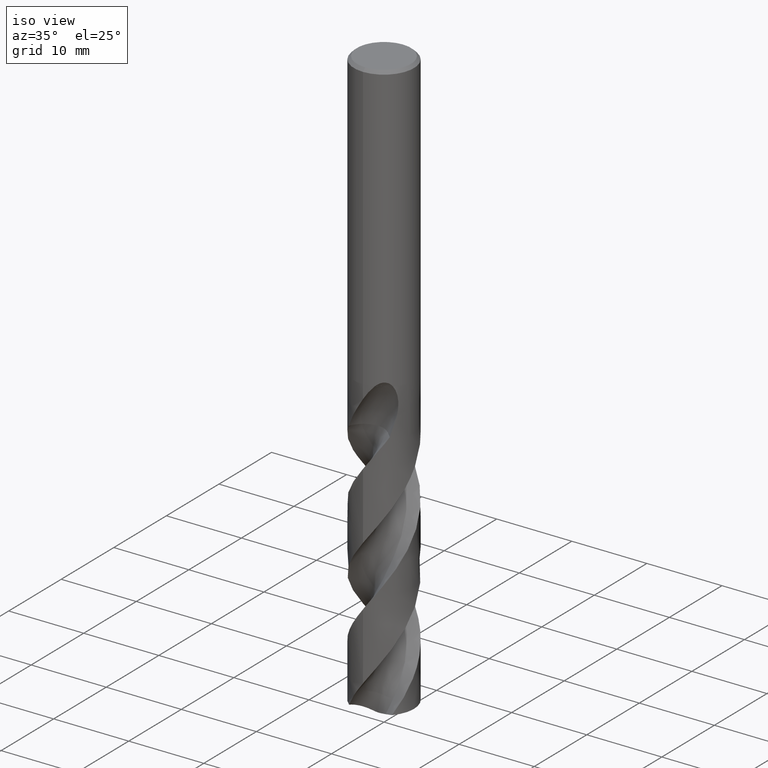
[diagram: clean part render]
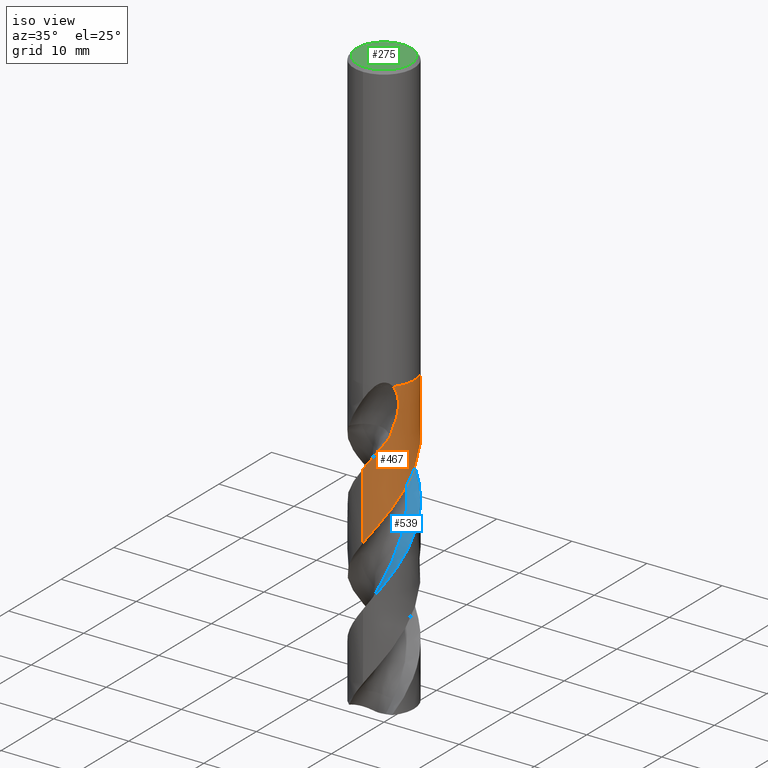
[diagram: same view with three faces highlighted in distinct colors, each labeled with its STEP entity id]
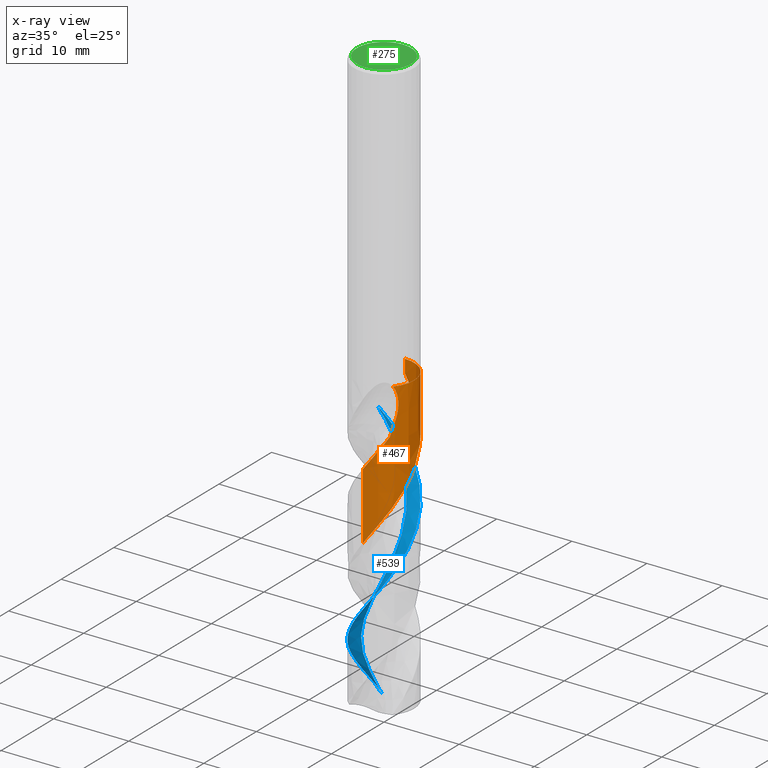
[diagram: x-ray of the same camera — body ghosted, the three highlighted faces saturated]
A machine part, iso view with three faces highlighted in distinct colors.
The next image is the same camera in x-ray (body ghosted, the three faces saturated) — at least one of them is partly hidden behind the body in this view.
Their STEP definitions:

[orange] entity #467 — the highlighted conical surface has half-angle 0 deg.
#259=EDGE_CURVE('',#579,#567,#718,.T.);
#293=EDGE_CURVE('',#417,#339,#755,.T.);
#339=VERTEX_POINT('',#803);
#341=EDGE_CURVE('',#359,#549,#805,.T.);
#359=VERTEX_POINT('',#825);
#379=VERTEX_POINT('',#847);
#417=VERTEX_POINT('',#887);
#449=EDGE_CURVE('',#359,#379,#921,.T.);
#467=ADVANCED_FACE('',(#941),#942,.T.);
#483=EDGE_CURVE('',#579,#553,#961,.T.);
#549=VERTEX_POINT('',#1036);
#553=VERTEX_POINT('',#1040);
#555=EDGE_CURVE('',#553,#379,#1042,.T.);
#567=VERTEX_POINT('',#1054);
#579=VERTEX_POINT('',#1067);
#581=EDGE_CURVE('',#339,#567,#1069,.T.);
#603=EDGE_CURVE('',#549,#417,#1094,.T.);
#718=LINE('',#1212,#1213);
#755=B_SPLINE_CURVE_WITH_KNOTS('',3,(#1384,#1385,#1386,#1387),.UNSPECIFIED.,.F.,.F.,(4,4),(0.0,2.29873803712953),.UNSPECIFIED.);
#803=CARTESIAN_POINT('',(2.78024947561382,-2.87567997457152,-44.053));
#805=CIRCLE('',#1595,3.9999);
#825=CARTESIAN_POINT('',(-4.89345678399292E-016,3.9999,-38.0));
#847=CARTESIAN_POINT('',(-1.18618490802268E-012,3.99990455466162,-39.8011008138342));
#887=CARTESIAN_POINT('',(3.25448228043364,-2.32542968964319,-41.8628172880269));
#921=LINE('',#2069,#2070);
#941=FACE_OUTER_BOUND('',#2116,.T.);
#942=CONICAL_SURFACE('',#2117,3.99995,2.52882103254965E-006);
#961=B_SPLINE_CURVE_WITH_KNOTS('',3,(#2983,#2984,#2985,#2986,#2987,#2988,#2989,#2990,#2991,#2992,#2993,#2994,#2995,#2996,#2997,#2998,#2999,#3000,#3001,#3002,#3003,#3004,#3005,#3006,#3007,#3008,#3009,#3010,#3011,#3012,#3013,#3014,#3015,#3016,#3017,#3018,#3019,#3020,#3021,#3022,#3023,#3024,#3025,#3026,#3027,#3028,#3029,#3030,#3031,#3032,#3033,#3034,#3035,#3036,#3037,#3038,#3039,#3040,#3041,#3042,#3043,#3044,#3045,#3046,#3047,#3048,#3049,#3050,#3051,#3052,#3053,#3054,#3055,#3056,#3057,#3058,#3059,#3060,#3061,#3062,#3063,#3064,#3065,#3066),.UNSPECIFIED.,.F.,.F.,(4,2,2,2,2,2,2,2,2,2,2,2,2,2,2,2,2,2,2,2,2,2,2,2,2,2,2,2,2,2,2,2,2,2,2,2,2,2,2,2,2,4),(0.0,0.466993071982984,1.56085903903604,3.07977783486032,4.65076815292183,5.67854188137602,7.44799171581827,8.48582976946521,9.3576793936837,11.5467537770352,12.1132031347875,14.4175220290737,14.6881141927173,16.8538458504184,17.7613100821273,19.6975171289141,20.7041081538005,22.4273696388923,23.4136111947088,25.0052843770841,25.9207089004989,27.7638046469278,28.6267141219373,30.8060161234016,31.1358816137681,33.2518537489696,34.3411333849285,34.7870307949766,35.2058606300186,36.7675805873647,37.7699387377938,37.8822435857834,39.9545110558685,40.987146583205,41.4979330878894,41.7490347595393,42.2598285027539,42.5771188161733,42.8874961530524,43.3273985915154,44.2854962409296,45.2155568114932),.UNSPECIFIED.);
#1036=CARTESIAN_POINT('',(3.03029553357837,-2.61084449731786,-38.0));
#1040=CARTESIAN_POINT('',(2.5488328128519,3.08265693111187,-44.053));
#1042=B_SPLINE_CURVE_WITH_KNOTS('',3,(#3700,#3701,#3702,#3703,#3704,#3705,#3706,#3707,#3708,#3709,#3710,#3711,#3712,#3713),.UNSPECIFIED.,.F.,.F.,(4,2,2,2,2,2,4),(0.0,1.95978423137594,3.02986399866256,3.99907610028404,5.12504948284089,6.47758921325995,7.17437654557761),.UNSPECIFIED.);
#1054=CARTESIAN_POINT('',(-3.78206123978452E-011,-3.99992578975759,-48.1983324470333));
#1067=CARTESIAN_POINT('',(4.57643044245412E-014,-3.99994831991983,-57.1076866303917));
#1069=B_SPLINE_CURVE_WITH_KNOTS('',3,(#3765,#3766,#3767,#3768,#3769,#3770,#3771,#3772,#3773,#3774,#3775,#3776,#3777,#3778,#3779,#3780,#3781,#3782,#3783,#3784,#3785,#3786,#3787,#3788,#3789,#3790,#3791,#3792,#3793,#3794,#3795,#3796,#3797,#3798,#3799,#3800,#3801,#3802,#3803,#3804,#3805,#3806,#3807,#3808,#3809,#3810,#3811,#3812,#3813,#3814,#3815,#3816,#3817,#3818,#3819,#3820,#3821,#3822,#3823,#3824,#3825,#3826,#3827,#3828,#3829,#3830,#3831,#3832,#3833,#3834,#3835,#3836,#3837,#3838,#3839,#3840,#3841,#3842,#3843,#3844,#3845,#3846,#3847,#3848,#3849,#3850,#3851,#3852,#3853,#3854,#3855,#3856,#3857,#3858,#3859,#3860,#3861,#3862),.UNSPECIFIED.,.F.,.F.,(4,2,2,2,2,2,2,2,2,2,2,2,2,2,2,2,2,2,2,2,2,2,2,2,2,2,2,2,2,2,2,2,2,2,2,2,2,2,2,2,2,2,2,2,2,2,2,2,4),(0.0,0.161558830081335,0.257574269643966,0.314032149016723,0.750439546208745,0.903068907682266,1.00078224702894,1.09256669001295,1.2156032268748,1.28829488469364,1.48824751057431,1.95261553014319,2.28666460100783,2.65204897678988,2.87296991204117,3.93394515330963,4.17820283635831,6.15037383693625,6.6909060508904,6.82440768317101,7.89897282879125,8.42998975985137,10.2811263383581,11.3955244339315,12.4640562243543,14.6228414463646,15.7025809307954,16.8170436110275,17.8868917351258,20.0419306894408,21.1220585518272,22.2364085691557,23.3070265246532,25.4590433784207,26.5395671837374,27.6538206117565,28.7251722500813,30.8741325461361,31.9550019647146,33.0690945420763,34.0868271815845,34.9875031285569,35.0775742492108,37.6732591030084,37.7849758336061,39.5344578915102,39.9724192966905,40.6296306219004,41.2866180073665),.UNSPECIFIED.);
#1094=B_SPLINE_CURVE_WITH_KNOTS('',3,(#3894,#3895,#3896,#3897,#3898,#3899,#3900,#3901),.UNSPECIFIED.,.F.,.F.,(4,2,2,4),(0.0,0.749386952632688,1.79745917421343,2.79446536130876),.UNSPECIFIED.);
#1212=CARTESIAN_POINT('',(4.90321035563302E-016,-3.99995,-57.7720595314676));
#1213=VECTOR('',#5138,1.0);
#1384=CARTESIAN_POINT('',(3.25448228048626,-2.32542968956955,-41.8628172880558));
#1385=CARTESIAN_POINT('',(3.1255316604602,-2.50590168087668,-42.5962575033641));
#1386=CARTESIAN_POINT('',(2.97011273356064,-2.69211486992764,-43.3340618626647));
#1387=CARTESIAN_POINT('',(2.78024947561382,-2.87567997457152,-44.053));
#1595=AXIS2_PLACEMENT_3D('',#5206,#5207,#5208);
#2069=CARTESIAN_POINT('',(-4.89351801431061E-016,3.99995,-57.7720595314676));
#2070=VECTOR('',#5309,1.0);
#2116=EDGE_LOOP('',(#5336,#5337,#5338,#5339,#5340,#5341,#5342,#5343));
#2117=AXIS2_PLACEMENT_3D('',#5344,#5345,#5346);
#2983=CARTESIAN_POINT('',(2.44003030410642,3.16958232501418,-77.5441190629352));
#2984=CARTESIAN_POINT('',(2.36653943268091,3.22615718894336,-77.4190999894674));
#2985=CARTESIAN_POINT('',(2.29109682032775,3.28016388602875,-77.294211530186));
#2986=CARTESIAN_POINT('',(2.03286758432926,3.45176005744725,-76.8764024705374));
#2987=CARTESIAN_POINT('',(1.84218511989279,3.55721865889583,-76.5828194828041));
#2988=CARTESIAN_POINT('',(1.36772985320517,3.77104903906614,-75.8838686596013));
#2989=CARTESIAN_POINT('',(1.07882379903797,3.86360092024951,-75.4812748628182));
#2990=CARTESIAN_POINT('',(0.475974508455059,3.98385147882473,-74.6544280576781));
#2991=CARTESIAN_POINT('',(0.16324514825891,4.0089023470591,-74.2313463232286));
#2992=CARTESIAN_POINT('',(-0.354282335006081,3.98953046778349,-73.5360102328143));
#2993=CARTESIAN_POINT('',(-0.558024768252969,3.96616074497301,-73.2622315756544));
#2994=CARTESIAN_POINT('',(-1.10506786146507,3.86043306155115,-72.513680940758));
#2995=CARTESIAN_POINT('',(-1.44072748641259,3.74815209035344,-72.0377547955574));
#2996=CARTESIAN_POINT('',(-1.94349024519449,3.50221825017652,-71.2867860262629));
#2997=CARTESIAN_POINT('',(-2.12190253291194,3.39707125756511,-71.0103453490774));
#2998=CARTESIAN_POINT('',(-2.43355345344811,3.17927753877042,-70.4991491185064));
#2999=CARTESIAN_POINT('',(-2.56892165474912,3.07088932109225,-70.2646646747019));
#3000=CARTESIAN_POINT('',(-3.01706189101023,2.66185356573003,-69.4457283809775));
#3001=CARTESIAN_POINT('',(-3.28766600907622,2.31931036355021,-68.8716881564467));
#3002=CARTESIAN_POINT('',(-3.55246014036689,1.84185584602715,-68.1351639433429));
#3003=CARTESIAN_POINT('',(-3.60265698071728,1.74162603319266,-67.9832964987377));
#3004=CARTESIAN_POINT('',(-3.83572002178533,1.2228750733886,-67.2158668809708));
#3005=CARTESIAN_POINT('',(-3.94994760586654,0.778045286498813,-66.6132901219902));
#3006=CARTESIAN_POINT('',(-3.99117215297,0.270505669512803,-65.9251446375349));
#3007=CARTESIAN_POINT('',(-3.9944284262054,0.217182070601991,-65.8527725547906));
#3008=CARTESIAN_POINT('',(-4.01414539851168,-0.264176138894769,-65.2015769244417));
#3009=CARTESIAN_POINT('',(-3.96288822052251,-0.692291661451429,-64.6339156071558));
#3010=CARTESIAN_POINT('',(-3.79479368005197,-1.27732928649928,-63.8143639096372));
#3011=CARTESIAN_POINT('',(-3.73367201029141,-1.44626116623889,-63.5711608524221));
#3012=CARTESIAN_POINT('',(-3.50703003480203,-1.96145543465141,-62.8128087517813));
#3013=CARTESIAN_POINT('',(-3.30321218253127,-2.28803830217411,-62.3044949219569));
#3014=CARTESIAN_POINT('',(-2.92771905387588,-2.73272196276274,-61.5199924695031));
#3015=CARTESIAN_POINT('',(-2.78794903426228,-2.8752135544006,-61.2500762454551));
#3016=CARTESIAN_POINT('',(-2.38102193531719,-3.23220715608033,-60.5219283405123));
#3017=CARTESIAN_POINT('',(-2.09648050664805,-3.42356706229299,-60.0677831143043));
#3018=CARTESIAN_POINT('',(-1.61686428832733,-3.66381029312013,-59.3447703434171));
#3019=CARTESIAN_POINT('',(-1.43595880109607,-3.73844272870146,-59.0800752372658));
#3020=CARTESIAN_POINT('',(-0.950000867527216,-3.89831768648211,-58.3918137075474));
#3021=CARTESIAN_POINT('',(-0.639427056874488,-3.96111370106586,-57.9713925397349));
#3022=CARTESIAN_POINT('',(-0.143753567273817,-4.001487093347,-57.3021840300902));
#3023=CARTESIAN_POINT('',(0.037679703989738,-4.00387550362946,-57.0565908735655));
#3024=CARTESIAN_POINT('',(0.583051938744974,-3.9740153671493,-56.3203579210188));
#3025=CARTESIAN_POINT('',(0.942998700346713,-3.90430732227909,-55.8354277875435));
#3026=CARTESIAN_POINT('',(1.4504596028116,-3.73161257891287,-55.1139530284867));
#3027=CARTESIAN_POINT('',(1.60827839773423,-3.66634599223918,-54.8827702761396));
#3028=CARTESIAN_POINT('',(2.14833276103994,-3.40145095274646,-54.0718026563925));
#3029=CARTESIAN_POINT('',(2.501508521641,-3.15069641546566,-53.5022684429568));
#3030=CARTESIAN_POINT('',(2.85413619019857,-2.80314882432006,-52.8333220454601));
#3031=CARTESIAN_POINT('',(2.89928081855078,-2.75642840302588,-52.7452681551129));
#3032=CARTESIAN_POINT('',(3.22577124498828,-2.40164071743821,-52.093426529268));
#3033=CARTESIAN_POINT('',(3.45879297421391,-2.05212287723534,-51.5397182063785));
#3034=CARTESIAN_POINT('',(3.72368026281509,-1.47649379665838,-50.6879400349753));
#3035=CARTESIAN_POINT('',(3.7976669232049,-1.27414277628226,-50.3972469024269));
#3036=CARTESIAN_POINT('',(3.8785169312292,-0.981988379505168,-49.9891957994321));
#3037=CARTESIAN_POINT('',(3.89919558351322,-0.896365564531206,-49.8707838624755));
#3038=CARTESIAN_POINT('',(3.93378840304554,-0.729101071187494,-49.6409831340296));
#3039=CARTESIAN_POINT('',(3.94802369621516,-0.647595491418687,-49.5296116719785));
#3040=CARTESIAN_POINT('',(4.00332769665356,-0.260500347014365,-49.0033207009607));
#3041=CARTESIAN_POINT('',(4.01151994262784,0.0489648332234386,-48.590237107809));
#3042=CARTESIAN_POINT('',(3.9663628021989,0.553728190887833,-47.9091618657639));
#3043=CARTESIAN_POINT('',(3.93412777532192,0.748865195526733,-47.6441416383113));
#3044=CARTESIAN_POINT('',(3.88266013189112,0.96167875493745,-47.3470680676023));
#3045=CARTESIAN_POINT('',(3.87731841297798,0.982993563215043,-47.3172055125023));
#3046=CARTESIAN_POINT('',(3.7696514486105,1.39805321789433,-46.7353240070497));
#3047=CARTESIAN_POINT('',(3.62875317633137,1.69677290835863,-46.3098822620747));
#3048=CARTESIAN_POINT('',(3.4745101638432,1.98467587335522,-45.8756174363592));
#3049=CARTESIAN_POINT('',(3.42024837308774,2.07658083691322,-45.7307755767749));
#3050=CARTESIAN_POINT('',(3.33568810062386,2.20798805154721,-45.5105929745419));
#3051=CARTESIAN_POINT('',(3.30723573986692,2.25034994478393,-45.4373700250908));
#3052=CARTESIAN_POINT('',(3.26422980581527,2.31187458058318,-45.3272327149316));
#3053=CARTESIAN_POINT('',(3.24997848156933,2.33186205535477,-45.2908216180288));
#3054=CARTESIAN_POINT('',(3.20652938290193,2.39164578133582,-45.1798988637216));
#3055=CARTESIAN_POINT('',(3.18837635163631,2.41567797648966,-45.1322330287143));
#3056=CARTESIAN_POINT('',(3.1450956769962,2.47152752654395,-45.0278351592527));
#3057=CARTESIAN_POINT('',(3.12799364334847,2.49314811454382,-44.9882269792918));
#3058=CARTESIAN_POINT('',(3.09302498951843,2.5363936072941,-44.9105378651744));
#3059=CARTESIAN_POINT('',(3.07521256470777,2.55797156117611,-44.87250807243));
#3060=CARTESIAN_POINT('',(3.03079229637261,2.61060643384608,-44.7814115780895));
#3061=CARTESIAN_POINT('',(3.00367682366478,2.64178969154339,-44.7288172552077));
#3062=CARTESIAN_POINT('',(2.91378828058797,2.74183640940452,-44.5639400961496));
#3063=CARTESIAN_POINT('',(2.84709243942995,2.81131806464959,-44.4551656265188));
#3064=CARTESIAN_POINT('',(2.7043358771611,2.94880053549655,-44.2472155662194));
#3065=CARTESIAN_POINT('',(2.62916659537246,3.01623487451069,-44.148669984651));
#3066=CARTESIAN_POINT('',(2.5488328128519,3.08265693111187,-44.053));
#3700=CARTESIAN_POINT('',(2.5488328128519,3.08265693111187,-44.053));
#3701=CARTESIAN_POINT('',(2.2849836388484,3.30081348232838,-43.4966351889871));
#3702=CARTESIAN_POINT('',(1.98161422373432,3.49474158710659,-42.9779236898022));
#3703=CARTESIAN_POINT('',(1.4526265347661,3.73244036400167,-42.1113865495034));
#3704=CARTESIAN_POINT('',(1.26227201237691,3.80081720643945,-41.8065113109426));
#3705=CARTESIAN_POINT('',(0.8937707103919,3.90300792986326,-41.2163566147681));
#3706=CARTESIAN_POINT('',(0.717269095937371,3.93911153389198,-40.9338273784585));
#3707=CARTESIAN_POINT('',(0.335219737532537,3.99121710724406,-40.3249082604162));
#3708=CARTESIAN_POINT('',(0.126480308211198,4.00344989719043,-39.9937517783735));
#3709=CARTESIAN_POINT('',(-0.337075435024751,3.99369827016157,-39.2853029872872));
#3710=CARTESIAN_POINT('',(-0.611916281768154,3.96353919403841,-38.8821906855032));
#3711=CARTESIAN_POINT('',(-1.0421006566459,3.86468067758482,-38.3426661680403));
#3712=CARTESIAN_POINT('',(-1.19979008271957,3.81970043671001,-38.1605609259594));
#3713=CARTESIAN_POINT('',(-1.36371149292712,3.76025145090837,-38.0));
#3765=CARTESIAN_POINT('',(2.78024947561382,-2.87567997457152,-44.053));
#3766=CARTESIAN_POINT('',(2.75817371482259,-2.89702329872677,-44.0972409630103));
#3767=CARTESIAN_POINT('',(2.73579522850856,-2.91816840513754,-44.141450561316));
#3768=CARTESIAN_POINT('',(2.69953309018408,-2.9516410993602,-44.2118364006002));
#3769=CARTESIAN_POINT('',(2.68590113251538,-2.96405192458793,-44.2380247457677));
#3770=CARTESIAN_POINT('',(2.66403238116934,-2.983685127317,-44.2795732605787));
#3771=CARTESIAN_POINT('',(2.65589200489596,-2.99093369458488,-44.2949393715448));
#3772=CARTESIAN_POINT('',(2.58440652295691,-3.05406353853585,-44.4289820852052));
#3773=CARTESIAN_POINT('',(2.5195458865767,-3.10785724221871,-44.5444066503138));
#3774=CARTESIAN_POINT('',(2.42682523714918,-3.17974512395423,-44.7015181520509));
#3775=CARTESIAN_POINT('',(2.40251596191174,-3.1981545632364,-44.7420436963689));
#3776=CARTESIAN_POINT('',(2.36209749057005,-3.22803626218739,-44.8084810361056));
#3777=CARTESIAN_POINT('',(2.34621073483269,-3.23960201715503,-44.8343624903714));
#3778=CARTESIAN_POINT('',(2.31517134037444,-3.26184964275784,-44.8845375472029));
#3779=CARTESIAN_POINT('',(2.30004806305068,-3.27253148274983,-44.9088073210754));
#3780=CARTESIAN_POINT('',(2.26443716999323,-3.29731446654428,-44.9656079287408));
#3781=CARTESIAN_POINT('',(2.24390290858417,-3.31132291863636,-44.9980952699091));
#3782=CARTESIAN_POINT('',(2.21102340386979,-3.3333067528726,-45.0498133321779));
#3783=CARTESIAN_POINT('',(2.19877265794748,-3.34140048533483,-45.0690178235066));
#3784=CARTESIAN_POINT('',(2.15267909421243,-3.37149030643671,-45.141093090513));
#3785=CARTESIAN_POINT('',(2.11873949885411,-3.39292397301257,-45.1938726499001));
#3786=CARTESIAN_POINT('',(2.00373886724129,-3.46312718442369,-45.3725475043822));
#3787=CARTESIAN_POINT('',(1.9220630768018,-3.50908733869282,-45.4986612851296));
#3788=CARTESIAN_POINT('',(1.77991076559926,-3.58270284335894,-45.7150981764534));
#3789=CARTESIAN_POINT('',(1.71970487506777,-3.61198703472405,-45.8058662503844));
#3790=CARTESIAN_POINT('',(1.59221934572049,-3.6700893673843,-45.9956666720981));
#3791=CARTESIAN_POINT('',(1.52467096689692,-3.69866762827949,-46.0948760621451));
#3792=CARTESIAN_POINT('',(1.41484763836497,-3.74159688371443,-46.2536858445686));
#3793=CARTESIAN_POINT('',(1.37312758292995,-3.75710939683183,-46.3134711764409));
#3794=CARTESIAN_POINT('',(1.1295151620951,-3.84308314748332,-46.6604520270726));
#3795=CARTESIAN_POINT('',(0.922631187480409,-3.89791535833661,-46.9460077476256));
#3796=CARTESIAN_POINT('',(0.664096855489992,-3.94471557548108,-47.2995644223873));
#3797=CARTESIAN_POINT('',(0.615594165492738,-3.95257422476922,-47.3657741116354));
#3798=CARTESIAN_POINT('',(0.174654807093539,-4.01571784049058,-47.9661218153915));
#3799=CARTESIAN_POINT('',(-0.224219267889872,-4.01331266003138,-48.4964642543062));
#3800=CARTESIAN_POINT('',(-0.723878657404707,-3.93538564815051,-49.1766611446798));
#3801=CARTESIAN_POINT('',(-0.830619219956113,-3.91424672027506,-49.3229294011489));
#3802=CARTESIAN_POINT('',(-0.962460868982047,-3.88250219122737,-49.5054256640562));
#3803=CARTESIAN_POINT('',(-0.988509206223059,-3.87595206276159,-49.5415732882532));
#3804=CARTESIAN_POINT('',(-1.22360168776609,-3.81431164850593,-49.8686668833983));
#3805=CARTESIAN_POINT('',(-1.4279826655762,-3.74260562762267,-50.1590982155586));
#3806=CARTESIAN_POINT('',(-1.72327672803808,-3.61125978557911,-50.5936894334951));
#3807=CARTESIAN_POINT('',(-1.81911846656761,-3.56394099464409,-50.7373244985811));
#3808=CARTESIAN_POINT('',(-2.23994929859682,-3.33477926904975,-51.3824422254813));
#3809=CARTESIAN_POINT('',(-2.54073534410586,-3.11177532247997,-51.8816988678607));
#3810=CARTESIAN_POINT('',(-2.96633026666592,-2.69272307612893,-52.6843315813356));
#3811=CARTESIAN_POINT('',(-3.11260427427421,-2.52218758469192,-52.9853643247719));
#3812=CARTESIAN_POINT('',(-3.3694879256393,-2.16615992752559,-53.5766951053328));
#3813=CARTESIAN_POINT('',(-3.48104444673428,-1.98194934745211,-53.865806587361));
#3814=CARTESIAN_POINT('',(-3.7717238314655,-1.40089630037116,-54.7396193327921));
#3815=CARTESIAN_POINT('',(-3.90147357668208,-0.98320768780238,-55.3199586247318));
#3816=CARTESIAN_POINT('',(-3.99156392036031,-0.33790040568694,-56.1971047730126));
#3817=CARTESIAN_POINT('',(-4.0040397699146,-0.120550353288497,-56.4888725531214));
#3818=CARTESIAN_POINT('',(-3.9933403005706,0.321251930134663,-57.082792093972));
#3819=CARTESIAN_POINT('',(-3.96903151863477,0.544637567385575,-57.3838923085283));
#3820=CARTESIAN_POINT('',(-3.88504236870304,0.975887487164191,-57.9756106385096));
#3821=CARTESIAN_POINT('',(-3.82690689283192,1.18355058957005,-58.2650523718779));
#3822=CARTESIAN_POINT('',(-3.60198683503147,1.79264697497041,-59.1382109476189));
#3823=CARTESIAN_POINT('',(-3.38648373388268,2.17241419691394,-59.7177727170173));
#3824=CARTESIAN_POINT('',(-2.97801377548558,2.67923924435044,-60.5940460275897));
#3825=CARTESIAN_POINT('',(-2.82800326463266,2.83714537054221,-60.8859126956235));
#3826=CARTESIAN_POINT('',(-2.49846108502527,3.13173233548702,-61.4799307160372));
#3827=CARTESIAN_POINT('',(-2.31894279399892,3.26686837081091,-61.7810713513256));
#3828=CARTESIAN_POINT('',(-1.946878919106,3.50081889056605,-62.3729883700244));
#3829=CARTESIAN_POINT('',(-1.75551597177285,3.60060206215514,-62.6626243448598));
#3830=CARTESIAN_POINT('',(-1.15779495972973,3.85317977887647,-63.5351816619197));
#3831=CARTESIAN_POINT('',(-0.733981565938138,3.95582075189177,-64.1140896269626));
#3832=CARTESIAN_POINT('',(-0.0853809702599216,4.00496317080986,-64.9896690936282));
#3833=CARTESIAN_POINT('',(0.132510583210868,4.00369397303291,-65.2816336053672));
#3834=CARTESIAN_POINT('',(0.572920514480877,3.96508541046705,-65.8757524593591));
#3835=CARTESIAN_POINT('',(0.794307215507007,3.92671410036085,-66.1769382876186));
#3836=CARTESIAN_POINT('',(1.21967286529169,3.81557644002615,-66.7690427008305));
#3837=CARTESIAN_POINT('',(1.4235483149138,3.74430769491307,-67.0588612090022));
#3838=CARTESIAN_POINT('',(2.01639757670813,3.48155186098606,-67.9307897627795));
#3839=CARTESIAN_POINT('',(2.3808461206971,3.24320846491052,-68.5090186255948));
#3840=CARTESIAN_POINT('',(2.86040858383841,2.80449788181527,-69.383867730984));
#3841=CARTESIAN_POINT('',(3.00873097103046,2.6447656376694,-69.6759127657801));
#3842=CARTESIAN_POINT('',(3.28216796193154,2.29730100841858,-70.2700926872944));
#3843=CARTESIAN_POINT('',(3.4057690136076,2.10969668129529,-70.5712958932913));
#3844=CARTESIAN_POINT('',(3.61084583816792,1.73308237173796,-71.1488420942555));
#3845=CARTESIAN_POINT('',(3.69485157335039,1.54594460418152,-71.4241949322865));
#3846=CARTESIAN_POINT('',(3.82552549870399,1.182426713264,-71.9436427192618));
#3847=CARTESIAN_POINT('',(3.87520256301209,1.00776993742532,-72.1870227979994));
#3848=CARTESIAN_POINT('',(3.91662288801854,0.812583081078308,-72.4552498907009));
#3849=CARTESIAN_POINT('',(3.92026698447911,0.794816503472833,-72.4796324626443));
#3850=CARTESIAN_POINT('',(4.02532687115128,0.264298499137277,-73.2069304361293));
#3851=CARTESIAN_POINT('',(4.02540324499781,-0.263748425264478,-73.9046150169381));
#3852=CARTESIAN_POINT('',(3.91947462474884,-0.798853249176351,-74.6378174321106));
#3853=CARTESIAN_POINT('',(3.9149186627906,-0.820889842467733,-74.6680669095033));
#3854=CARTESIAN_POINT('',(3.83591470635279,-1.18739657210955,-75.1722906837448));
#3855=CARTESIAN_POINT('',(3.71640856778385,-1.52070050582631,-75.6459554729643));
#3856=CARTESIAN_POINT('',(3.51432761489579,-1.91239700975867,-76.2387610446247));
#3857=CARTESIAN_POINT('',(3.4712749231945,-1.98947745088493,-76.3573883980877));
#3858=CARTESIAN_POINT('',(3.3573006958557,-2.17854657901733,-76.6541114577558));
#3859=CARTESIAN_POINT('',(3.28332050303899,-2.288522424865,-76.8319844079709));
#3860=CARTESIAN_POINT('',(3.12476558723038,-2.50067264773999,-77.1881107782663));
#3861=CARTESIAN_POINT('',(3.04028644655675,-2.60272628463773,-77.3660796267275));
#3862=CARTESIAN_POINT('',(2.9509044611237,-2.70040050017033,-77.5441190629351));
#3894=CARTESIAN_POINT('',(3.03029553357838,-2.61084449731786,-38.0));
#3895=CARTESIAN_POINT('',(3.12912241085858,-2.49614113774975,-38.1986812895775));
#3896=CARTESIAN_POINT('',(3.20702865915759,-2.39256727063488,-38.4456345668702));
#3897=CARTESIAN_POINT('',(3.34694944688594,-2.19479093249136,-39.1256686605514));
#3898=CARTESIAN_POINT('',(3.39340642630742,-2.11755952049364,-39.6064143521524));
#3899=CARTESIAN_POINT('',(3.39932822403705,-2.10804440287566,-40.6552816295042));
#3900=CARTESIAN_POINT('',(3.36561137326288,-2.16989969945288,-41.2307530606176));
#3901=CARTESIAN_POINT('',(3.25448228043364,-2.32542968964319,-41.8628172880269));
#5138=DIRECTION('',(-3.09681030413666E-022,2.52882103254695E-006,0.999999999996803));
#5206=CARTESIAN_POINT('',(0.0,0.0,-38.0));
#5207=DIRECTION('',(0.0,0.0,-1.0));
#5208=DIRECTION('',(0.0,1.0,0.0));
#5309=DIRECTION('',(-3.09681030413666E-022,2.52882103254695E-006,-0.999999999996803));
#5336=ORIENTED_EDGE('',*,*,#449,.F.);
#5337=ORIENTED_EDGE('',*,*,#341,.T.);
#5338=ORIENTED_EDGE('',*,*,#603,.T.);
#5339=ORIENTED_EDGE('',*,*,#293,.T.);
#5340=ORIENTED_EDGE('',*,*,#581,.T.);
#5341=ORIENTED_EDGE('',*,*,#259,.F.);
#5342=ORIENTED_EDGE('',*,*,#483,.T.);
#5343=ORIENTED_EDGE('',*,*,#555,.T.);
#5344=CARTESIAN_POINT('',(0.0,0.0,-57.7720595314676));
#5345=DIRECTION('',(0.0,-0.0,-1.0));
#5346=DIRECTION('',(0.0,1.0,0.0));

[blue] entity #539 — the highlighted face is a freeform B-spline surface patch.
#267=VERTEX_POINT('',#727);
#269=VERTEX_POINT('',#729);
#281=VERTEX_POINT('',#743);
#287=EDGE_CURVE('',#267,#281,#749,.T.);
#429=EDGE_CURVE('',#679,#501,#901,.T.);
#435=VERTEX_POINT('',#907);
#489=EDGE_CURVE('',#679,#269,#968,.T.);
#501=VERTEX_POINT('',#981);
#539=ADVANCED_FACE('',(#1023),#1024,.F.);
#605=EDGE_CURVE('',#501,#435,#1096,.T.);
#613=EDGE_CURVE('',#281,#269,#1104,.T.);
#649=EDGE_CURVE('',#435,#267,#1143,.T.);
#679=VERTEX_POINT('',#1176);
#727=CARTESIAN_POINT('',(-1.21893868216048E-014,-3.99996854104963,-65.1039542681433));
#729=CARTESIAN_POINT('',(-1.60189261773388,1.94788214096683,-78.0820800006169));
#743=CARTESIAN_POINT('',(-2.95090446112371,2.70040050017034,-77.5441190629352));
#749=B_SPLINE_CURVE_WITH_KNOTS('',3,(#1266,#1267,#1268,#1269,#1270,#1271,#1272,#1273,#1274,#1275,#1276,#1277,#1278,#1279,#1280,#1281,#1282,#1283,#1284,#1285,#1286,#1287,#1288,#1289,#1290,#1291,#1292,#1293,#1294,#1295,#1296,#1297,#1298,#1299,#1300,#1301,#1302,#1303,#1304,#1305,#1306,#1307,#1308,#1309,#1310,#1311,#1312,#1313,#1314,#1315,#1316,#1317,#1318,#1319,#1320,#1321,#1322,#1323,#1324,#1325,#1326,#1327,#1328,#1329,#1330,#1331,#1332,#1333,#1334,#1335,#1336,#1337,#1338,#1339,#1340,#1341,#1342,#1343,#1344,#1345,#1346,#1347,#1348,#1349,#1350,#1351,#1352,#1353,#1354,#1355,#1356,#1357,#1358,#1359,#1360,#1361,#1362,#1363),.UNSPECIFIED.,.F.,.F.,(4,2,2,2,2,2,2,2,2,2,2,2,2,2,2,2,2,2,2,2,2,2,2,2,2,2,2,2,2,2,2,2,2,2,2,2,2,2,2,2,2,2,2,2,2,2,2,2,4),(0.0,0.161558829926524,0.25757426708763,0.314032149895317,0.750439545360861,0.903068906429483,1.00078224562604,1.09256668861567,1.21560322549259,1.28829488357823,1.48824751036295,1.95261552915162,2.28666459986812,2.65204897585331,2.87296991135595,3.9339451522726,4.17820283785262,6.15037385824677,6.69090607213743,6.82440770414903,7.8989728509788,8.42998978095149,10.2811264246173,11.3955245199029,12.4640563125683,14.6228415283065,15.7025810133178,16.8170436932078,17.8868918192039,20.0419307658502,21.1220586287737,22.2364086457429,23.3070266021578,25.459043450061,26.5395672560597,27.653820683827,28.7251723239103,30.8741326125654,31.9550020319453,33.0690946090691,34.0868272402391,34.9875031787057,35.0775742960026,37.673259241777,37.7849759673882,39.5344579564725,39.9724193449182,40.6296306448547,41.2866180051252),.UNSPECIFIED.);
#901=LINE('',#1954,#1955);
#907=CARTESIAN_POINT('',(3.78439275153805E-011,3.99992578975759,-48.1983324470334));
#968=B_SPLINE_CURVE_WITH_KNOTS('',3,(#3077,#3078,#3079,#3080,#3081,#3082,#3083,#3084,#3085,#3086,#3087,#3088,#3089,#3090,#3091,#3092,#3093,#3094,#3095,#3096,#3097,#3098,#3099,#3100,#3101,#3102,#3103,#3104,#3105,#3106,#3107,#3108,#3109,#3110,#3111,#3112,#3113,#3114,#3115,#3116,#3117,#3118,#3119,#3120,#3121,#3122,#3123,#3124,#3125,#3126,#3127,#3128,#3129,#3130,#3131,#3132),.UNSPECIFIED.,.F.,.F.,(4,1,2,1,2,2,2,2,2,1,2,1,2,1,2,1,2,1,2,1,2,1,2,1,2,1,2,1,2,1,2,1,2,2,4),(0.0,0.787558223712185,1.57511644742437,2.36267467113655,3.15023289484874,4.72534934227311,6.30046578969748,7.87558223712185,9.45069868454622,11.0258151319706,12.600931579395,14.1760480268193,15.7511644742437,17.3262809216681,18.9013973690924,20.4765138165168,22.0516302639412,23.6267467113655,25.2018631587899,26.7769796062143,28.3520960536387,29.927212501063,31.5023289484874,33.0774453959118,34.6525618433361,36.2276782907605,37.8027947381849,39.3779111856092,40.9530276330336,42.528144080458,44.1032605278824,45.6783769753067,47.2534934227311,48.8286098701555,50.4037263175798),.UNSPECIFIED.);
#981=CARTESIAN_POINT('',(-2.78024947561382,2.87567997457152,-44.053));
#1023=FACE_OUTER_BOUND('',#3356,.T.);
#1024=B_SPLINE_SURFACE_WITH_KNOTS('',3,3,((#3357,#3358,#3359,#3360,#3361,#3362,#3363,#3364,#3365,#3366,#3367,#3368,#3369,#3370,#3371,#3372,#3373,#3374,#3375,#3376,#3377,#3378,#3379,#3380,#3381,#3382,#3383,#3384,#3385,#3386,#3387,#3388,#3389,#3390,#3391,#3392,#3393,#3394,#3395,#3396,#3397,#3398,#3399,#3400,#3401,#3402,#3403,#3404,#3405,#3406,#3407,#3408,#3409,#3410,#3411,#3412),(#3413,#3414,#3415,#3416,#3417,#3418,#3419,#3420,#3421,#3422,#3423,#3424,#3425,#3426,#3427,#3428,#3429,#3430,#3431,#3432,#3433,#3434,#3435,#3436,#3437,#3438,#3439,#3440,#3441,#3442,#3443,#3444,#3445,#3446,#3447,#3448,#3449,#3450,#3451,#3452,#3453,#3454,#3455,#3456,#3457,#3458,#3459,#3460,#3461,#3462,#3463,#3464,#3465,#3466,#3467,#3468),(#3469,#3470,#3471,#3472,#3473,#3474,#3475,#3476,#3477,#3478,#3479,#3480,#3481,#3482,#3483,#3484,#3485,#3486,#3487,#3488,#3489,#3490,#3491,#3492,#3493,#3494,#3495,#3496,#3497,#3498,#3499,#3500,#3501,#3502,#3503,#3504,#3505,#3506,#3507,#3508,#3509,#3510,#3511,#3512,#3513,#3514,#3515,#3516,#3517,#3518,#3519,#3520,#3521,#3522,#3523,#3524),(#3525,#3526,#3527,#3528,#3529,#3530,#3531,#3532,#3533,#3534,#3535,#3536,#3537,#3538,#3539,#3540,#3541,#3542,#3543,#3544,#3545,#3546,#3547,#3548,#3549,#3550,#3551,#3552,#3553,#3554,#3555,#3556,#3557,#3558,#3559,#3560,#3561,#3562,#3563,#3564,#3565,#3566,#3567,#3568,#3569,#3570,#3571,#3572,#3573,#3574,#3575,#3576,#3577,#3578,#3579,#3580)),.UNSPECIFIED.,.F.,.F.,.F.,(4,4),(4,1,2,1,2,2,2,2,2,1,2,1,2,1,2,1,2,1,2,1,2,1,2,1,2,1,2,1,2,1,2,1,2,2,4),(4.79176702657125E-016,5.33333333),(0.0,0.787558223712185,1.57511644742437,2.36267467113655,3.15023289484874,4.72534934227311,6.30046578969748,7.87558223712185,9.45069868454622,11.0258151319706,12.600931579395,14.1760480268193,15.7511644742437,17.3262809216681,18.9013973690924,20.4765138165168,22.0516302639412,23.6267467113655,25.2018631587899,26.7769796062143,28.3520960536387,29.927212501063,31.5023289484874,33.0774453959118,34.6525618433361,36.2276782907605,37.8027947381849,39.3779111856092,40.9530276330336,42.528144080458,44.1032605278824,45.6783769753067,47.2534934227311,48.8286098701555,50.4037263175798),.UNSPECIFIED.);
#1096=B_SPLINE_CURVE_WITH_KNOTS('',3,(#3904,#3905,#3906,#3907,#3908,#3909,#3910,#3911,#3912,#3913,#3914,#3915,#3916,#3917,#3918,#3919,#3920,#3921,#3922,#3923,#3924,#3925,#3926,#3927,#3928,#3929,#3930,#3931,#3932,#3933,#3934,#3935,#3936,#3937,#3938,#3939,#3940,#3941,#3942,#3943,#3944,#3945,#3946,#3947,#3948,#3949,#3950,#3951,#3952,#3953,#3954,#3955,#3956,#3957,#3958,#3959,#3960,#3961,#3962,#3963,#3964,#3965,#3966,#3967,#3968,#3969,#3970,#3971,#3972,#3973,#3974,#3975,#3976,#3977,#3978,#3979,#3980,#3981,#3982,#3983,#3984,#3985,#3986,#3987,#3988,#3989,#3990,#3991,#3992,#3993,#3994,#3995,#3996,#3997,#3998,#3999,#4000,#4001),.UNSPECIFIED.,.F.,.F.,(4,2,2,2,2,2,2,2,2,2,2,2,2,2,2,2,2,2,2,2,2,2,2,2,2,2,2,2,2,2,2,2,2,2,2,2,2,2,2,2,2,2,2,2,2,2,2,2,4),(0.0,0.161558829926524,0.25757426708763,0.314032149895317,0.750439545360861,0.903068906429483,1.00078224562604,1.09256668861567,1.21560322549259,1.28829488357823,1.48824751036295,1.95261552915162,2.28666459986812,2.65204897585331,2.87296991135595,3.9339451522726,4.17820283785262,6.15037385824677,6.69090607213743,6.82440770414903,7.8989728509788,8.42998978095149,10.2811264246173,11.3955245199029,12.4640563125683,14.6228415283065,15.7025810133178,16.8170436932078,17.8868918192039,20.0419307658502,21.1220586287737,22.2364086457429,23.3070266021578,25.459043450061,26.5395672560597,27.653820683827,28.7251723239103,30.8741326125654,31.9550020319453,33.0690946090691,34.0868272402391,34.9875031787057,35.0775742960026,37.673259241777,37.7849759673882,39.5344579564725,39.9724193449182,40.6296306448547,41.2866180051252),.UNSPECIFIED.);
#1104=B_SPLINE_CURVE_WITH_KNOTS('',3,(#4013,#4014,#4015,#4016,#4017,#4018,#4019,#4020),.UNSPECIFIED.,.F.,.F.,(4,2,2,4),(0.0,1.77955550962584,2.65227687730685,3.51795281042746),.UNSPECIFIED.);
#1143=B_SPLINE_CURVE_WITH_KNOTS('',3,(#4278,#4279,#4280,#4281,#4282,#4283,#4284,#4285,#4286,#4287,#4288,#4289,#4290,#4291,#4292,#4293,#4294,#4295,#4296,#4297,#4298,#4299,#4300,#4301,#4302,#4303,#4304,#4305,#4306,#4307,#4308,#4309,#4310,#4311,#4312,#4313,#4314,#4315,#4316,#4317,#4318,#4319,#4320,#4321,#4322,#4323,#4324,#4325,#4326,#4327,#4328,#4329,#4330,#4331,#4332,#4333,#4334,#4335,#4336,#4337,#4338,#4339,#4340,#4341,#4342,#4343,#4344,#4345,#4346,#4347,#4348,#4349,#4350,#4351,#4352,#4353,#4354,#4355,#4356,#4357,#4358,#4359,#4360,#4361,#4362,#4363,#4364,#4365,#4366,#4367,#4368,#4369,#4370,#4371,#4372,#4373,#4374,#4375),.UNSPECIFIED.,.F.,.F.,(4,2,2,2,2,2,2,2,2,2,2,2,2,2,2,2,2,2,2,2,2,2,2,2,2,2,2,2,2,2,2,2,2,2,2,2,2,2,2,2,2,2,2,2,2,2,2,2,4),(0.0,0.161558829926524,0.25757426708763,0.314032149895317,0.750439545360861,0.903068906429483,1.00078224562604,1.09256668861567,1.21560322549259,1.28829488357823,1.48824751036295,1.95261552915162,2.28666459986812,2.65204897585331,2.87296991135595,3.9339451522726,4.17820283785262,6.15037385824677,6.69090607213743,6.82440770414903,7.8989728509788,8.42998978095149,10.2811264246173,11.3955245199029,12.4640563125683,14.6228415283065,15.7025810133178,16.8170436932078,17.8868918192039,20.0419307658502,21.1220586287737,22.2364086457429,23.3070266021578,25.459043450061,26.5395672560597,27.653820683827,28.7251723239103,30.8741326125654,31.9550020319453,33.0690946090691,34.0868272402391,34.9875031787057,35.0775742960026,37.673259241777,37.7849759673882,39.5344579564725,39.9724193449182,40.6296306448547,41.2866180051252),.UNSPECIFIED.);
#1176=CARTESIAN_POINT('',(-1.88561808545044,1.98104858454956,-44.053));
#1266=CARTESIAN_POINT('',(-2.78024947561382,2.87567997457152,-44.053));
#1267=CARTESIAN_POINT('',(-2.75817371484374,2.89702329870632,-44.0972409629679));
#1268=CARTESIAN_POINT('',(-2.73579522852875,2.91816840511894,-44.1414505612769));
#1269=CARTESIAN_POINT('',(-2.69953309049718,2.95164109907122,-44.2118363999925));
#1270=CARTESIAN_POINT('',(-2.68590113317429,2.96405192398811,-44.238024744502));
#1271=CARTESIAN_POINT('',(-2.66403238165584,2.98368512688508,-44.2795732596625));
#1272=CARTESIAN_POINT('',(-2.6558920048843,2.99093369459777,-44.2949393715711));
#1273=CARTESIAN_POINT('',(-2.58440652252661,3.05406353889597,-44.4289820859781));
#1274=CARTESIAN_POINT('',(-2.51954588633743,3.10785724240888,-44.5444066507263));
#1275=CARTESIAN_POINT('',(-2.4268252370197,3.17974512405294,-44.7015181522677));
#1276=CARTESIAN_POINT('',(-2.40251596182642,3.19815456330031,-44.7420436965102));
#1277=CARTESIAN_POINT('',(-2.36209749049018,3.22803626224588,-44.8084810362362));
#1278=CARTESIAN_POINT('',(-2.34621073474342,3.23960201721947,-44.8343624905162));
#1279=CARTESIAN_POINT('',(-2.31517134032287,3.26184964279443,-44.8845375472859));
#1280=CARTESIAN_POINT('',(-2.30004806299475,3.27253148278917,-44.908807321165));
#1281=CARTESIAN_POINT('',(-2.26443716991563,3.29731446659767,-44.965607928864));
#1282=CARTESIAN_POINT('',(-2.2439029084955,3.3113229186966,-44.9980952700492));
#1283=CARTESIAN_POINT('',(-2.21102340371021,3.33330675297873,-45.0498133324286));
#1284=CARTESIAN_POINT('',(-2.19877265773505,3.3414004854749,-45.0690178238395));
#1285=CARTESIAN_POINT('',(-2.15267909376372,3.37149030672577,-45.1410930912127));
#1286=CARTESIAN_POINT('',(-2.11873949824163,3.39292397339741,-45.1938726508538));
#1287=CARTESIAN_POINT('',(-2.00373886654257,3.46312718482472,-45.3725475054628));
#1288=CARTESIAN_POINT('',(-1.92206307621293,3.50908733901179,-45.4986612860329));
#1289=CARTESIAN_POINT('',(-1.77991076513519,3.58270284358925,-45.7150981771553));
#1290=CARTESIAN_POINT('',(-1.71970487461767,3.61198703493799,-45.8058662510599));
#1291=CARTESIAN_POINT('',(-1.59221934523162,3.67008936759744,-45.99566667282));
#1292=CARTESIAN_POINT('',(-1.5246709663603,3.69866762850171,-46.0948760629299));
#1293=CARTESIAN_POINT('',(-1.4148476377222,3.74159688395817,-46.2536858454928));
#1294=CARTESIAN_POINT('',(-1.37312758223258,3.75710939708752,-46.3134711774391));
#1295=CARTESIAN_POINT('',(-1.12951516129784,3.84308314771865,-46.6604520281851));
#1296=CARTESIAN_POINT('',(-0.922631186670499,3.89791535852853,-46.9460077487401));
#1297=CARTESIAN_POINT('',(-0.664096854148268,3.94471557571354,-47.2995644242206));
#1298=CARTESIAN_POINT('',(-0.615594163628272,3.95257422506616,-47.3657741141791));
#1299=CARTESIAN_POINT('',(-0.174654800591868,4.01571784118006,-47.9661218242013));
#1300=CARTESIAN_POINT('',(0.224219278581789,4.01331265984234,-48.4964642685439));
#1301=CARTESIAN_POINT('',(0.723878671913754,3.93538564548246,-49.1766611645183));
#1302=CARTESIAN_POINT('',(0.830619234411794,3.91424671720821,-49.3229294210237));
#1303=CARTESIAN_POINT('',(0.962460883299275,3.88250218767791,-49.5054256839075));
#1304=CARTESIAN_POINT('',(0.98850922047279,3.87595205912709,-49.5415733080448));
#1305=CARTESIAN_POINT('',(1.22360170203754,3.81431164394495,-49.8686669035336));
#1306=CARTESIAN_POINT('',(1.42798267986456,3.74260562218857,-50.1590982360854));
#1307=CARTESIAN_POINT('',(1.72327674191979,3.61125977894926,-50.5936894541732));
#1308=CARTESIAN_POINT('',(1.81911848009762,3.56394098773232,-50.7373245190215));
#1309=CARTESIAN_POINT('',(2.23994932268546,3.33477925434298,-51.3824422634561));
#1310=CARTESIAN_POINT('',(2.54073537702869,3.11177529718345,-51.8816989232518));
#1311=CARTESIAN_POINT('',(2.96633030331183,2.69272303575997,-52.6843316544789));
#1312=CARTESIAN_POINT('',(3.11260430859856,2.52218754233143,-52.9853643980766));
#1313=CARTESIAN_POINT('',(3.36948795539713,2.16615988128594,-53.5766951793065));
#1314=CARTESIAN_POINT('',(3.48104447421573,1.98194929924137,-53.8658066619403));
#1315=CARTESIAN_POINT('',(3.77172385055328,1.40089624863249,-54.739619406401));
#1316=CARTESIAN_POINT('',(3.90147358976407,0.983207635393953,-55.3199586971232));
#1317=CARTESIAN_POINT('',(3.9915639248281,0.337900353029915,-56.1971048440105));
#1318=CARTESIAN_POINT('',(4.00403977151962,0.120550300289417,-56.4888726242859));
#1319=CARTESIAN_POINT('',(3.99334029630537,-0.321251983145672,-57.0827921653206));
#1320=CARTESIAN_POINT('',(3.96903151140552,-0.544637620056552,-57.3838923800089));
#1321=CARTESIAN_POINT('',(3.88504235568089,-0.97588753909845,-57.9756107105263));
#1322=CARTESIAN_POINT('',(3.8269068769084,-1.18355064113845,-58.2650524443988));
#1323=CARTESIAN_POINT('',(3.60198681117369,-1.7926470225642,-59.1382110186743));
#1324=CARTESIAN_POINT('',(3.38648370578262,-2.17241424043319,-59.717772786451));
#1325=CARTESIAN_POINT('',(2.97801374183092,-2.67923928177174,-60.5940460952006));
#1326=CARTESIAN_POINT('',(2.82800322888081,-2.83714540619057,-60.8859127633801));
#1327=CARTESIAN_POINT('',(2.49846104546009,-3.13173236704978,-61.4799307839387));
#1328=CARTESIAN_POINT('',(2.3189427527516,-3.26686840008677,-61.781071419336));
#1329=CARTESIAN_POINT('',(1.94687887477026,-3.50081891523515,-62.3729884382619));
#1330=CARTESIAN_POINT('',(1.75551592597779,-3.60060208449697,-62.6626244133214));
#1331=CARTESIAN_POINT('',(1.15779491150235,-3.85317979324511,-63.5351817290868));
#1332=CARTESIAN_POINT('',(0.733981517519715,-3.95582076075697,-64.1140896929354));
#1333=CARTESIAN_POINT('',(0.0853809221503704,-4.00496317184569,-64.9896691582675));
#1334=CARTESIAN_POINT('',(-0.132510631482636,-4.00369397144452,-65.2816336701808));
#1335=CARTESIAN_POINT('',(-0.572920562432821,-3.96508540353747,-65.8757525243622));
#1336=CARTESIAN_POINT('',(-0.794307262975184,-3.92671409075741,-66.1769383527411));
#1337=CARTESIAN_POINT('',(-1.21967291175278,-3.81557642519595,-66.7690427664199));
#1338=CARTESIAN_POINT('',(-1.42354836086705,-3.74430767746492,-67.0588612750391));
#1339=CARTESIAN_POINT('',(-2.01639761847998,-3.4815518366179,-67.9307898273211));
#1340=CARTESIAN_POINT('',(-2.38084615844147,-3.24320843701508,-68.5090186885034));
#1341=CARTESIAN_POINT('',(-2.86040861573038,-2.80449784930348,-69.3838677921546));
#1342=CARTESIAN_POINT('',(-3.00873100123435,-2.64476560332435,-69.6759128271524));
#1343=CARTESIAN_POINT('',(-3.28216798825108,-2.29730097081359,-70.2700927488787));
#1344=CARTESIAN_POINT('',(-3.40576903776458,-2.10969664229455,-70.5712959549835));
#1345=CARTESIAN_POINT('',(-3.61084585720443,-1.73308233187959,-71.1488421536584));
#1346=CARTESIAN_POINT('',(-3.69485158968014,-1.54594456493432,-71.4241949894124));
#1347=CARTESIAN_POINT('',(-3.82552551019508,-1.18242667582808,-71.943642771832));
#1348=CARTESIAN_POINT('',(-3.87520257236406,-1.00776990115576,-72.1870228482783));
#1349=CARTESIAN_POINT('',(-3.91662289513176,-0.812583046778337,-72.4552499377924));
#1350=CARTESIAN_POINT('',(-3.92026699130203,-0.794816469805149,-72.4796325088339));
#1351=CARTESIAN_POINT('',(-4.02532687692477,-0.264298447336553,-73.2069305061663));
#1352=CARTESIAN_POINT('',(-4.02540324274292,0.263748495827421,-73.9046151103729));
#1353=CARTESIAN_POINT('',(-3.91947460739473,0.798853334294951,-74.6378175488803));
#1354=CARTESIAN_POINT('',(-3.91491864516787,0.820889926485504,-74.6680670249284));
#1355=CARTESIAN_POINT('',(-3.83591468422238,1.18739663931694,-75.1722907787545));
#1356=CARTESIAN_POINT('',(-3.71640854531572,1.52070055742924,-75.6459555485665));
#1357=CARTESIAN_POINT('',(-3.51432759645786,1.91239704348132,-76.2387610962863));
#1358=CARTESIAN_POINT('',(-3.47127490574557,1.98947748117598,-76.357388445069));
#1359=CARTESIAN_POINT('',(-3.35730068142693,2.17854660093385,-76.6541114929873));
#1360=CARTESIAN_POINT('',(-3.28332049089993,2.28852244197653,-76.8319844361671));
#1361=CARTESIAN_POINT('',(-3.12476558054435,2.50067265581708,-77.188110792353));
#1362=CARTESIAN_POINT('',(-3.04028644301901,2.60272628850368,-77.3660796337743));
#1363=CARTESIAN_POINT('',(-2.9509044611237,2.70040050017033,-77.5441190629351));
#1954=CARTESIAN_POINT('',(-1.88561808552115,1.98104858447885,-44.053));
#1955=VECTOR('',#5303,0.999999999999999);
#3077=CARTESIAN_POINT('',(-1.88561808545044,1.98104858454956,-44.053));
#3078=CARTESIAN_POINT('',(-1.69871710418192,1.97145550625743,-44.2347711487142));
#3079=CARTESIAN_POINT('',(-1.40105879059682,1.9902735115873,-44.5966997313065));
#3080=CARTESIAN_POINT('',(-1.25524262252866,2.07849680161746,-44.9582869916186));
#3081=CARTESIAN_POINT('',(-1.17295794795068,2.21050845906527,-45.3246242624263));
#3082=CARTESIAN_POINT('',(-1.05910316465496,2.32106882855452,-45.6916518436982));
#3083=CARTESIAN_POINT('',(-0.897888482859323,2.3825138896529,-46.0564769908884));
#3084=CARTESIAN_POINT('',(-0.633345362803169,2.43920137865008,-46.600074037587));
#3085=CARTESIAN_POINT('',(-0.463314016011667,2.47053526617684,-46.9629339274622));
#3086=CARTESIAN_POINT('',(-0.132702175014207,2.52415658086229,-47.6927269873472));
#3087=CARTESIAN_POINT('',(0.039404545569242,2.52664816621715,-48.0572720913552));
#3088=CARTESIAN_POINT('',(0.379671808132233,2.49677684826464,-48.7847694331444));
#3089=CARTESIAN_POINT('',(0.548473533722496,2.46309517554488,-49.1487251187091));
#3090=CARTESIAN_POINT('',(0.875232425195068,2.36863703771597,-49.8772121125722));
#3091=CARTESIAN_POINT('',(1.03381734780271,2.30263611286328,-50.2412921072369));
#3092=CARTESIAN_POINT('',(1.33502888416427,2.14783636284207,-50.9693745043084));
#3093=CARTESIAN_POINT('',(1.61895958980909,1.95136446728658,-51.6977800472369));
#3094=CARTESIAN_POINT('',(1.85747432109222,1.70407157619252,-52.4255614071146));
#3095=CARTESIAN_POINT('',(2.0743969412662,1.44548140937606,-53.1538195459448));
#3096=CARTESIAN_POINT('',(2.25865002553005,1.15417533283017,-53.882430307527));
#3097=CARTESIAN_POINT('',(2.38000745875682,0.832532855869806,-54.6102664537786));
#3098=CARTESIAN_POINT('',(2.47669043022925,0.508863955865235,-55.3384250500163));
#3099=CARTESIAN_POINT('',(2.53066669506456,0.168324476237864,-56.0669506972623));
#3100=CARTESIAN_POINT('',(2.51522906193053,-0.175034925779605,-56.7947747192682));
#3101=CARTESIAN_POINT('',(2.47634327747086,-0.510535543078954,-57.5229696783011));
#3102=CARTESIAN_POINT('',(2.39148385935212,-0.844710729094954,-58.2515224547695));
#3103=CARTESIAN_POINT('',(2.24167618595024,-1.15407285382542,-58.9793485391108));
#3104=CARTESIAN_POINT('',(2.07345219583152,-1.44695155834701,-59.7075328176437));
#3105=CARTESIAN_POINT('',(1.86353049485122,-1.72045642099337,-60.4360784421937));
#3106=CARTESIAN_POINT('',(1.60373916107546,-1.94551775505974,-61.1639045022787));
#3107=CARTESIAN_POINT('',(1.33352672688686,-2.1481577037688,-61.8920915525542));
#3108=CARTESIAN_POINT('',(1.0326550475334,-2.31653153460555,-62.6206388100986));
#3109=CARTESIAN_POINT('',(0.705100916554753,-2.4207083464109,-63.3484648169749));
#3110=CARTESIAN_POINT('',(0.376829531664485,-2.50017441221641,-64.0766514406906));
#3111=CARTESIAN_POINT('',(0.033921102047061,-2.53605044123371,-64.8051986438269));
#3112=CARTESIAN_POINT('',(-0.308151357864577,-2.50240605650522,-65.5330245937897));
#3113=CARTESIAN_POINT('',(-0.641124326470529,-2.44577453490987,-66.2612107871778));
#3114=CARTESIAN_POINT('',(-0.970329160379157,-2.34332189545187,-66.9897575800239));
#3115=CARTESIAN_POINT('',(-1.2713137576936,-2.17733543498727,-67.7175850022408));
#3116=CARTESIAN_POINT('',(-1.55486200877199,-1.99382130281938,-68.4457743364049));
#3117=CARTESIAN_POINT('',(-1.81685073746285,-1.76967945548349,-69.1743223821374));
#3118=CARTESIAN_POINT('',(-2.02781637909507,-1.49831165432829,-69.9021423385309));
#3119=CARTESIAN_POINT('',(-2.21584766564785,-1.21774430736986,-70.6303183817833));
#3120=CARTESIAN_POINT('',(-2.36805036840725,-0.908399420444521,-71.3588640141905));
#3121=CARTESIAN_POINT('',(-2.45469953354382,-0.575760612307374,-72.0867139411507));
#3122=CARTESIAN_POINT('',(-2.51657007996296,-0.243667674758999,-72.8149373763252));
#3123=CARTESIAN_POINT('',(-2.53413914952904,0.100719705432679,-73.5434851220113));
#3124=CARTESIAN_POINT('',(-2.48267330657574,0.440415531595069,-74.271236674593));
#3125=CARTESIAN_POINT('',(-2.40905004043989,0.769761451436298,-74.9993206860832));
#3126=CARTESIAN_POINT('',(-2.289452040094,1.09303356828949,-75.7278757899758));
#3127=CARTESIAN_POINT('',(-2.10609953626921,1.38472010627573,-76.4558700752252));
#3128=CARTESIAN_POINT('',(-1.90515688375822,1.6576834552991,-77.1842455406873));
#3129=CARTESIAN_POINT('',(-1.78752767061407,1.78279863615638,-77.5483980349687));
#3130=CARTESIAN_POINT('',(-1.53619302644919,2.0094869113596,-78.2760297747866));
#3131=CARTESIAN_POINT('',(-1.39219443422046,2.10643437031163,-78.6399434306458));
#3132=CARTESIAN_POINT('',(-1.23772979094716,2.18602061778716,-79.0036560380439));
#3356=EDGE_LOOP('',(#5450,#5451,#5452,#5453,#5454,#5455));
#3357=CARTESIAN_POINT('',(-1.88561808552115,1.98104858447885,-44.053));
#3358=CARTESIAN_POINT('',(-1.69871710425263,1.97145550618672,-44.2347711487142));
#3359=CARTESIAN_POINT('',(-1.40105879066904,1.99027351151708,-44.5966997313064));
#3360=CARTESIAN_POINT('',(-1.25524262260569,2.07849680155545,-44.9582869916184));
#3361=CARTESIAN_POINT('',(-1.17295794803237,2.21050845900559,-45.3246242624262));
#3362=CARTESIAN_POINT('',(-1.05910316474143,2.32106882850464,-45.6916518436982));
#3363=CARTESIAN_POINT('',(-0.897888482948963,2.38251388960869,-46.0564769908884));
#3364=CARTESIAN_POINT('',(-0.633345362896307,2.43920137861286,-46.600074037587));
#3365=CARTESIAN_POINT('',(-0.463314016111263,2.47053526614661,-46.9629339274621));
#3366=CARTESIAN_POINT('',(-0.132702175109139,2.52415658084606,-47.6927269873472));
#3367=CARTESIAN_POINT('',(0.0394045454716198,2.52664816620483,-48.0572720913551));
#3368=CARTESIAN_POINT('',(0.379671808029947,2.49677684827098,-48.7847694331444));
#3369=CARTESIAN_POINT('',(0.548473533619318,2.46309517555506,-49.1487251187091));
#3370=CARTESIAN_POINT('',(0.875232425101216,2.36863703774013,-49.8772121125722));
#3371=CARTESIAN_POINT('',(1.03381734770504,2.30263611289535,-50.2412921072368));
#3372=CARTESIAN_POINT('',(1.33502888407593,2.14783636288347,-50.9693745043084));
#3373=CARTESIAN_POINT('',(1.61895958972364,1.95136446734353,-51.6977800472415));
#3374=CARTESIAN_POINT('',(1.85747432101657,1.70407157625596,-52.4255614071053));
#3375=CARTESIAN_POINT('',(2.07439694119988,1.44548140945349,-53.1538195459541));
#3376=CARTESIAN_POINT('',(2.25865002547477,1.15417533291286,-53.8824303075223));
#3377=CARTESIAN_POINT('',(2.38000745871244,0.832532855960222,-54.6102664537786));
#3378=CARTESIAN_POINT('',(2.47669043019886,0.508863955960314,-55.3384250500162));
#3379=CARTESIAN_POINT('',(2.53066669504627,0.168324476337097,-56.0669506972576));
#3380=CARTESIAN_POINT('',(2.51522906192581,-0.175034925679632,-56.7947747192775));
#3381=CARTESIAN_POINT('',(2.47634327748013,-0.510535542978981,-57.5229696782917));
#3382=CARTESIAN_POINT('',(2.3914838593738,-0.844710728995491,-58.2515224547741));
#3383=CARTESIAN_POINT('',(2.24167618598715,-1.15407285373447,-58.9793485391108));
#3384=CARTESIAN_POINT('',(2.07345219587775,-1.44695155825606,-59.7075328176436));
#3385=CARTESIAN_POINT('',(1.86353049491031,-1.72045642091335,-60.4360784421937));
#3386=CARTESIAN_POINT('',(1.60373916114724,-1.94551775498794,-61.1639045022787));
#3387=CARTESIAN_POINT('',(1.3335267269633,-2.14815770370632,-61.8920915525541));
#3388=CARTESIAN_POINT('',(1.03265504762128,-2.31653153455252,-62.6206388100893));
#3389=CARTESIAN_POINT('',(0.70510091664702,-2.42070834637615,-63.3484648169935));
#3390=CARTESIAN_POINT('',(0.376829531761415,-2.50017441218632,-64.0766514406719));
#3391=CARTESIAN_POINT('',(0.0339211021471229,-2.53605044122194,-64.8051986438269));
#3392=CARTESIAN_POINT('',(-0.308151357764866,-2.50240605650813,-65.5330245938083));
#3393=CARTESIAN_POINT('',(-0.641124326370817,-2.44577453492211,-66.2612107871591));
#3394=CARTESIAN_POINT('',(-0.970329160281044,-2.34332189548112,-66.9897575800332));
#3395=CARTESIAN_POINT('',(-1.27131375760499,-2.17733543502661,-67.7175850022407));
#3396=CARTESIAN_POINT('',(-1.55486200868338,-1.9938213028727,-68.4457743364049));
#3397=CARTESIAN_POINT('',(-1.81685073738846,-1.76967945554687,-69.174322382128));
#3398=CARTESIAN_POINT('',(-2.02781637902263,-1.49831165440119,-69.9021423385495));
#3399=CARTESIAN_POINT('',(-2.21584766559406,-1.21774430745209,-70.6303183817646));
#3400=CARTESIAN_POINT('',(-2.36805036835778,-0.908399420532706,-71.3588640141998));
#3401=CARTESIAN_POINT('',(-2.4546995335118,-0.575760612403558,-72.0867139411506));
#3402=CARTESIAN_POINT('',(-2.51657007994026,-0.243667674855183,-72.8149373763252));
#3403=CARTESIAN_POINT('',(-2.53413914952264,0.100719705333238,-73.5434851220112));
#3404=CARTESIAN_POINT('',(-2.48267330658161,0.440415531491237,-74.2712366745929));
#3405=CARTESIAN_POINT('',(-2.40905004045975,0.769761451341793,-74.9993206860831));
#3406=CARTESIAN_POINT('',(-2.28945204012612,1.09303356819302,-75.7278757899757));
#3407=CARTESIAN_POINT('',(-2.10609953631547,1.384720106185,-76.4558700752251));
#3408=CARTESIAN_POINT('',(-1.90515688381381,1.65768345521771,-77.1842455406872));
#3409=CARTESIAN_POINT('',(-1.78752767067438,1.78279863607776,-77.5483980349313));
#3410=CARTESIAN_POINT('',(-1.53619302652349,2.00948691129031,-78.2760297748238));
#3411=CARTESIAN_POINT('',(-1.39219443429648,2.10643437024555,-78.6399434306457));
#3412=CARTESIAN_POINT('',(-1.23772979102784,2.18602061772808,-79.0036560380439));
#3413=CARTESIAN_POINT('',(-3.1426968068477,3.23812730580146,-44.052999999998));
#3414=CARTESIAN_POINT('',(-2.95502138924667,3.22930866384184,-44.2347935531889));
#3415=CARTESIAN_POINT('',(-2.62982901525081,3.27652068984088,-44.5950745402211));
#3416=CARTESIAN_POINT('',(-2.39800968989733,3.44248975739152,-44.9544395404084));
#3417=CARTESIAN_POINT('',(-2.19369842170433,3.66807071681279,-45.3224228044896));
#3418=CARTESIAN_POINT('',(-1.96133792770235,3.85704826343919,-45.6917538894604));
#3419=CARTESIAN_POINT('',(-1.69298446583987,3.97355517046848,-46.0572222370608));
#3420=CARTESIAN_POINT('',(-1.2768837658713,4.10014400492852,-46.5988600216007));
#3421=CARTESIAN_POINT('',(-0.996247487698467,4.17103541119849,-46.9607191333575));
#3422=CARTESIAN_POINT('',(-0.425593213118673,4.28197670379609,-47.6917643568529));
#3423=CARTESIAN_POINT('',(-0.133782703794117,4.30003625520797,-48.056673549959));
#3424=CARTESIAN_POINT('',(0.446401228822486,4.27734978972754,-48.7836308630302));
#3425=CARTESIAN_POINT('',(0.734780943556159,4.23519703541183,-49.14747594013));
#3426=CARTESIAN_POINT('',(1.29928942639035,4.09930914451937,-49.8761992069201));
#3427=CARTESIAN_POINT('',(1.57379186489045,4.00077823877307,-50.240269122003));
#3428=CARTESIAN_POINT('',(2.10102772062812,3.75671772724255,-50.968269776932));
#3429=CARTESIAN_POINT('',(2.59750160965363,3.44981304777278,-51.6968485022781));
#3430=CARTESIAN_POINT('',(3.02306685388503,3.05195469110724,-52.4243093585675));
#3431=CARTESIAN_POINT('',(3.41327751032095,2.62140173046433,-53.1526238713078));
#3432=CARTESIAN_POINT('',(3.74960710629966,2.14414738024888,-53.8815702401555));
#3433=CARTESIAN_POINT('',(3.98326890559578,1.61029820808257,-54.6091294639468));
#3434=CARTESIAN_POINT('',(4.17113565151836,1.06042202227731,-55.3372658422391));
#3435=CARTESIAN_POINT('',(4.29137063459013,0.489114715279427,-56.0660598544891));
#3436=CARTESIAN_POINT('',(4.29532299360255,-0.0935718324342475,-56.7935971779265));
#3437=CARTESIAN_POINT('',(4.2508827228026,-0.672938939909226,-57.5217987691632));
#3438=CARTESIAN_POINT('',(4.13576295976131,-1.24530279736588,-58.2506413817932));
#3439=CARTESIAN_POINT('',(3.90926109194031,-1.78218998100539,-58.9781820938893));
#3440=CARTESIAN_POINT('',(3.63963141444728,-2.29692083951668,-59.7063650459777));
#3441=CARTESIAN_POINT('',(3.30784665640842,-2.77730829403684,-60.4351942704074));
#3442=CARTESIAN_POINT('',(2.88774254481183,-3.18111699472964,-61.1627357076697));
#3443=CARTESIAN_POINT('',(2.43675835739489,-3.54753072489525,-61.8909227579451));
#3444=CARTESIAN_POINT('',(1.94223197634437,-3.85784724800263,-62.6197558336447));
#3445=CARTESIAN_POINT('',(1.39680756349854,-4.06293628897798,-63.3472961813321));
#3446=CARTESIAN_POINT('',(0.837780846219598,-4.22147875831929,-64.0754834682328));
#3447=CARTESIAN_POINT('',(0.260903088828674,-4.31128667956184,-64.8043155031119));
#3448=CARTESIAN_POINT('',(-0.321181200488034,-4.28431529027959,-65.531856353549));
#3449=CARTESIAN_POINT('',(-0.897379820769339,-4.20920805482921,-66.2600425468998));
#3450=CARTESIAN_POINT('',(-1.46283628734625,-4.063909612349,-66.9888743873871));
#3451=CARTESIAN_POINT('',(-1.98696419890151,-3.80927149450059,-67.7164177432779));
#3452=CARTESIAN_POINT('',(-2.48667697574839,-3.51273077757934,-68.4446090671088));
#3453=CARTESIAN_POINT('',(-2.94879260407107,-3.15592996912888,-69.1734424190972));
#3454=CARTESIAN_POINT('',(-3.32975207013752,-2.7150014858301,-69.9009724464761));
#3455=CARTESIAN_POINT('',(-3.67174310689322,-2.24523299664009,-70.6291418574687));
#3456=CARTESIAN_POINT('',(-3.9554268367355,-1.73497233497084,-71.3579737698617));
#3457=CARTESIAN_POINT('',(-4.1312894838648,-1.17942646343572,-72.0855568730318));
#3458=CARTESIAN_POINT('',(-4.2598841681031,-0.612743525340031,-72.8138048474297));
#3459=CARTESIAN_POINT('',(-4.31891176267943,-0.0318798796137538,-73.5426292302956));
#3460=CARTESIAN_POINT('',(-4.26138975463994,0.547966676408652,-74.2700393996302));
#3461=CARTESIAN_POINT('',(-4.15636548490735,1.11945023183138,-74.9980610682288));
#3462=CARTESIAN_POINT('',(-3.98136784669665,1.67638846920713,-75.7269422391488));
#3463=CARTESIAN_POINT('',(-3.69792379643921,2.18554831303329,-76.4547731578053));
#3464=CARTESIAN_POINT('',(-3.37335154213658,2.66745046430983,-77.1832268834931));
#3465=CARTESIAN_POINT('',(-3.18407033363017,2.88955624591722,-77.5473597925558));
#3466=CARTESIAN_POINT('',(-2.76925583984352,3.29587478596557,-78.27482705333));
#3467=CARTESIAN_POINT('',(-2.5367029646308,3.47179103626424,-78.638940857287));
#3468=CARTESIAN_POINT('',(-2.28812409940884,3.62030249040296,-79.0025931114602));
#3469=CARTESIAN_POINT('',(-4.39977552816582,4.49520602712748,-44.053000000002));
#3470=CARTESIAN_POINT('',(-4.21132564775835,4.48716184742928,-44.2348159419449));
#3471=CARTESIAN_POINT('',(-3.85859925300686,4.56276782769194,-44.5934493746826));
#3472=CARTESIAN_POINT('',(-3.54077675727722,4.80648276827365,-44.9505920538717));
#3473=CARTESIAN_POINT('',(-3.21443889528962,5.12563291962252,-45.3202213818658));
#3474=CARTESIAN_POINT('',(-2.86357269536697,5.39302773134759,-45.6918558877749));
#3475=CARTESIAN_POINT('',(-2.48808043928259,5.56459644044198,-46.0579675428633));
#3476=CARTESIAN_POINT('',(-1.92042218771539,5.76108665309113,-46.5976458863892));
#3477=CARTESIAN_POINT('',(-1.52918104205282,5.87153549591236,-46.9585043951687));
#3478=CARTESIAN_POINT('',(-0.718484168309669,6.039796887135,-47.6908016704808));
#3479=CARTESIAN_POINT('',(-0.306970036980452,6.07342430207935,-48.0560751698192));
#3480=CARTESIAN_POINT('',(0.513130733529649,6.05792277332146,-48.7824921316763));
#3481=CARTESIAN_POINT('',(0.921088267158386,6.00729880062902,-49.1462267157858));
#3482=CARTESIAN_POINT('',(1.72334651403207,5.82998134592662,-49.8751863470809));
#3483=CARTESIAN_POINT('',(2.11376625123329,5.69892042847298,-50.2392463056881));
#3484=CARTESIAN_POINT('',(2.86702668804054,5.36559902778514,-50.9671648806882));
#3485=CARTESIAN_POINT('',(3.57604345045157,4.94826170468681,-51.6959171636385));
#3486=CARTESIAN_POINT('',(4.18865961425353,4.39983771697417,-52.4230570662625));
#3487=CARTESIAN_POINT('',(4.75215785200739,3.79732214041379,-53.1514284404372));
#3488=CARTESIAN_POINT('',(5.24056421934049,3.13411941398092,-53.8807101919658));
#3489=CARTESIAN_POINT('',(5.58653051550022,2.3880634984506,-54.6079921920186));
#3490=CARTESIAN_POINT('',(5.86558070984582,1.61198015027106,-55.3361069164794));
#3491=CARTESIAN_POINT('',(6.05207467095631,0.809904849442906,-56.0651689115083));
#3492=CARTESIAN_POINT('',(6.07541689464534,-0.0121085914723546,-56.792419555112));
#3493=CARTESIAN_POINT('',(6.02542219875104,-0.835342484579397,-57.520627941438));
#3494=CARTESIAN_POINT('',(5.88004205658854,-1.64589468081726,-58.2497600322864));
#3495=CARTESIAN_POINT('',(5.57684597446453,-2.41030733050441,-58.9770161202056));
#3496=CARTESIAN_POINT('',(5.2058106564891,-3.14688989859199,-59.7051968029173));
#3497=CARTESIAN_POINT('',(4.75216277112896,-3.83416022528915,-60.4343105033181));
#3498=CARTESIAN_POINT('',(4.17174599858528,-4.4167163405556,-61.1615665751825));
#3499=CARTESIAN_POINT('',(3.53998991771918,-4.94690364006407,-61.8897543010451));
#3500=CARTESIAN_POINT('',(2.85180898686957,-5.3991630446572,-62.6188724150373));
#3501=CARTESIAN_POINT('',(2.0885141168307,-5.70516417122961,-63.346128092171));
#3502=CARTESIAN_POINT('',(1.29873225413734,-5.94278316480962,-64.0743149494612));
#3503=CARTESIAN_POINT('',(0.48788502566457,-6.08652295934711,-64.8034325277471));
#3504=CARTESIAN_POINT('',(-0.334211037007363,-6.06622438079998,-65.5306883289196));
#3505=CARTESIAN_POINT('',(-1.15363532142025,-5.97264171791961,-66.2588740910475));
#3506=CARTESIAN_POINT('',(-1.95534342344138,-5.78449719472283,-66.9879912329468));
#3507=CARTESIAN_POINT('',(-2.70261461598932,-5.44120767978961,-67.7152506233266));
#3508=CARTESIAN_POINT('',(-3.41849196707236,-5.03164012651022,-68.4434436588554));
#3509=CARTESIAN_POINT('',(-4.08073452101915,-4.5421805940172,-69.1725622853527));
#3510=CARTESIAN_POINT('',(-4.63168763649217,-3.93169122037396,-69.8998030345493));
#3511=CARTESIAN_POINT('',(-5.12763867294108,-3.2727217826334,-70.6279648532181));
#3512=CARTESIAN_POINT('',(-5.54280318703094,-2.56154513873332,-71.3570834984033));
#3513=CARTESIAN_POINT('',(-5.8078795456314,-1.78309243897823,-72.084400338556));
#3514=CARTESIAN_POINT('',(-6.00319814487804,-0.981819251313447,-72.8126717848785));
#3515=CARTESIAN_POINT('',(-6.10368439199966,-0.164479512916706,-73.5417734992185));
#3516=CARTESIAN_POINT('',(-6.04010628180632,0.655517793649295,-74.2688423372771));
#3517=CARTESIAN_POINT('',(-5.90368085030954,1.4691390400472,-74.9968012379663));
#3518=CARTESIAN_POINT('',(-5.67328366482178,2.25974336007485,-75.7260085488511));
#3519=CARTESIAN_POINT('',(-5.28974811246391,2.9863765126222,-76.4536767322183));
#3520=CARTESIAN_POINT('',(-4.84154614451391,3.67721748069206,-77.1822077342251));
#3521=CARTESIAN_POINT('',(-4.58061290695255,3.99631386452401,-77.5463206874365));
#3522=CARTESIAN_POINT('',(-4.00231874277941,4.58226265189757,-78.2736251946968));
#3523=CARTESIAN_POINT('',(-3.68121135459402,4.83714753474093,-78.637938649954));
#3524=CARTESIAN_POINT('',(-3.33851840782168,5.05458436309009,-79.0015301849031));
#3525=CARTESIAN_POINT('',(-5.65685424949238,5.75228474845008,-44.053));
#3526=CARTESIAN_POINT('',(-5.46762993275239,5.7450150050844,-44.2348383464196));
#3527=CARTESIAN_POINT('',(-5.08736949831433,5.84901500601574,-44.5918241835973));
#3528=CARTESIAN_POINT('',(-4.68354378311747,6.17047572410971,-44.9467446026617));
#3529=CARTESIAN_POINT('',(-4.23517941041298,6.58319517742972,-45.3180199239292));
#3530=CARTESIAN_POINT('',(-3.76580742723934,6.92900716628214,-45.6919579231742));
#3531=CARTESIAN_POINT('',(-3.28317644289918,7.15563772130177,-46.0587128097615));
#3532=CARTESIAN_POINT('',(-2.56396054923899,7.42202927940679,-46.5964318289516));
#3533=CARTESIAN_POINT('',(-2.06211455509141,7.57203555806146,-46.956289601064));
#3534=CARTESIAN_POINT('',(-1.01137516486781,7.79761709298782,-47.6898390399865));
#3535=CARTESIAN_POINT('',(-0.480157286246189,7.84681247398527,-48.0554765455203));
#3536=CARTESIAN_POINT('',(0.579860154322187,7.83849563187524,-48.7813536444649));
#3537=CARTESIAN_POINT('',(1.10739567709523,7.77940070193718,-49.1449775372067));
#3538=CARTESIAN_POINT('',(2.14740351532121,7.56065341125447,-49.8741734414289));
#3539=CARTESIAN_POINT('',(2.65374064406453,7.39706263725349,-50.2382233204542));
#3540=CARTESIAN_POINT('',(3.63302564894691,6.97448030924145,-50.9660601533119));
#3541=CARTESIAN_POINT('',(4.55458536675308,6.44671029547891,-51.6949856186751));
#3542=CARTESIAN_POINT('',(5.35425223002476,5.74772089400253,-52.4218050177248));
#3543=CARTESIAN_POINT('',(6.09103833822568,4.97324239924754,-53.1502327657908));
#3544=CARTESIAN_POINT('',(6.73152134161676,4.1240914302284,-53.879850124599));
#3545=CARTESIAN_POINT('',(7.18979196238357,3.16582897492712,-54.6068552021868));
#3546=CARTESIAN_POINT('',(7.56002593116532,2.16353809223388,-55.3349477087023));
#3547=CARTESIAN_POINT('',(7.81277856904878,1.13069515056232,-56.0642780687397));
#3548=CARTESIAN_POINT('',(7.85551090922486,0.0693545017730295,-56.791242013761));
#3549=CARTESIAN_POINT('',(7.79996156117073,-0.997745881509643,-57.5194570323094));
#3550=CARTESIAN_POINT('',(7.62432119842744,-2.04648670773625,-58.2488788764026));
#3551=CARTESIAN_POINT('',(7.24443088041769,-3.03842454067811,-58.9758498407897));
#3552=CARTESIAN_POINT('',(6.77198987505862,-3.99685909694982,-59.7040288654458));
#3553=CARTESIAN_POINT('',(6.19647895335276,-4.89101209841265,-60.4334265802402));
#3554=CARTESIAN_POINT('',(5.45574934079849,-5.65231566320008,-61.1603974489624));
#3555=CARTESIAN_POINT('',(4.64322158960217,-6.34627657835022,-61.8885858380473));
#3556=CARTESIAN_POINT('',(3.76138587414127,-6.9404788202844,-62.6179891069816));
#3557=CARTESIAN_POINT('',(2.78022080513361,-7.34739207238006,-63.3449597881207));
#3558=CARTESIAN_POINT('',(1.75968352714413,-7.66408755239399,-64.0731466454109));
#3559=CARTESIAN_POINT('',(0.714866970894731,-7.86175909405853,-64.8025495528377));
#3560=CARTESIAN_POINT('',(-0.34724075537636,-7.848133780377,-65.5295200886602));
#3561=CARTESIAN_POINT('',(-1.40989094017294,-7.73607507202114,-66.2577058507881));
#3562=CARTESIAN_POINT('',(-2.4478505090552,-7.50508505667057,-66.9871080403007));
#3563=CARTESIAN_POINT('',(-3.41826501583445,-7.07314361490943,-67.7140833643637));
#3564=CARTESIAN_POINT('',(-4.35030697558877,-6.55054972557103,-68.4422783895593));
#3565=CARTESIAN_POINT('',(-5.21267640842746,-5.92843102469642,-69.1716823223219));
#3566=CARTESIAN_POINT('',(-5.93362324470429,-5.14838109325426,-69.8986331424759));
#3567=CARTESIAN_POINT('',(-6.58353419714303,-4.30021043037002,-70.6267883289222));
#3568=CARTESIAN_POINT('',(-7.13017961395727,-3.38811811534854,-71.3561934198707));
#3569=CARTESIAN_POINT('',(-7.48446949598439,-2.38675820710761,-72.0832429388261));
#3570=CARTESIAN_POINT('',(-7.74651223304087,-1.35089518470108,-72.8115395875942));
#3571=CARTESIAN_POINT('',(-7.88845706733355,-0.297079056412308,-73.5409174416973));
#3572=CARTESIAN_POINT('',(-7.81882260551049,0.763068938566711,-74.2676450623144));
#3573=CARTESIAN_POINT('',(-7.65099641911131,1.81882782053678,-74.995541620112));
#3574=CARTESIAN_POINT('',(-7.36519936776384,2.84309832326604,-75.7250746664131));
#3575=CARTESIAN_POINT('',(-6.88157245549043,3.78720459511632,-76.4525804780208));
#3576=CARTESIAN_POINT('',(-6.3097407199339,4.68698461413836,-77.1811884138087));
#3577=CARTESIAN_POINT('',(-5.97715563208542,5.10307139146068,-77.5452817818387));
#3578=CARTESIAN_POINT('',(-5.23538149392236,5.86865060947562,-78.2724231364253));
#3579=CARTESIAN_POINT('',(-4.82571996783112,6.20250420075961,-78.6369360765953));
#3580=CARTESIAN_POINT('',(-4.38891271620267,6.48886623576497,-79.0004672583195));
#3904=CARTESIAN_POINT('',(-2.78024947561382,2.87567997457152,-44.053));
#3905=CARTESIAN_POINT('',(-2.75817371484374,2.89702329870632,-44.0972409629679));
#3906=CARTESIAN_POINT('',(-2.73579522852875,2.91816840511894,-44.1414505612769));
#3907=CARTESIAN_POINT('',(-2.69953309049718,2.95164109907122,-44.2118363999925));
#3908=CARTESIAN_POINT('',(-2.68590113317429,2.96405192398811,-44.238024744502));
#3909=CARTESIAN_POINT('',(-2.66403238165584,2.98368512688508,-44.2795732596625));
#3910=CARTESIAN_POINT('',(-2.6558920048843,2.99093369459777,-44.2949393715711));
#3911=CARTESIAN_POINT('',(-2.58440652252661,3.05406353889597,-44.4289820859781));
#3912=CARTESIAN_POINT('',(-2.51954588633743,3.10785724240888,-44.5444066507263));
#3913=CARTESIAN_POINT('',(-2.4268252370197,3.17974512405294,-44.7015181522677));
#3914=CARTESIAN_POINT('',(-2.40251596182642,3.19815456330031,-44.7420436965102));
#3915=CARTESIAN_POINT('',(-2.36209749049018,3.22803626224588,-44.8084810362362));
#3916=CARTESIAN_POINT('',(-2.34621073474342,3.23960201721947,-44.8343624905162));
#3917=CARTESIAN_POINT('',(-2.31517134032287,3.26184964279443,-44.8845375472859));
#3918=CARTESIAN_POINT('',(-2.30004806299475,3.27253148278917,-44.908807321165));
#3919=CARTESIAN_POINT('',(-2.26443716991563,3.29731446659767,-44.965607928864));
#3920=CARTESIAN_POINT('',(-2.2439029084955,3.3113229186966,-44.9980952700492));
#3921=CARTESIAN_POINT('',(-2.21102340371021,3.33330675297873,-45.0498133324286));
#3922=CARTESIAN_POINT('',(-2.19877265773505,3.3414004854749,-45.0690178238395));
#3923=CARTESIAN_POINT('',(-2.15267909376372,3.37149030672577,-45.1410930912127));
#3924=CARTESIAN_POINT('',(-2.11873949824163,3.39292397339741,-45.1938726508538));
#3925=CARTESIAN_POINT('',(-2.00373886654257,3.46312718482472,-45.3725475054628));
#3926=CARTESIAN_POINT('',(-1.92206307621293,3.50908733901179,-45.4986612860329));
#3927=CARTESIAN_POINT('',(-1.77991076513519,3.58270284358925,-45.7150981771553));
#3928=CARTESIAN_POINT('',(-1.71970487461767,3.61198703493799,-45.8058662510599));
#3929=CARTESIAN_POINT('',(-1.59221934523162,3.67008936759744,-45.99566667282));
#3930=CARTESIAN_POINT('',(-1.5246709663603,3.69866762850171,-46.0948760629299));
#3931=CARTESIAN_POINT('',(-1.4148476377222,3.74159688395817,-46.2536858454928));
#3932=CARTESIAN_POINT('',(-1.37312758223258,3.75710939708752,-46.3134711774391));
#3933=CARTESIAN_POINT('',(-1.12951516129784,3.84308314771865,-46.6604520281851));
#3934=CARTESIAN_POINT('',(-0.922631186670499,3.89791535852853,-46.9460077487401));
#3935=CARTESIAN_POINT('',(-0.664096854148268,3.94471557571354,-47.2995644242206));
#3936=CARTESIAN_POINT('',(-0.615594163628272,3.95257422506616,-47.3657741141791));
#3937=CARTESIAN_POINT('',(-0.174654800591868,4.01571784118006,-47.9661218242013));
#3938=CARTESIAN_POINT('',(0.224219278581789,4.01331265984234,-48.4964642685439));
#3939=CARTESIAN_POINT('',(0.723878671913754,3.93538564548246,-49.1766611645183));
#3940=CARTESIAN_POINT('',(0.830619234411794,3.91424671720821,-49.3229294210237));
#3941=CARTESIAN_POINT('',(0.962460883299275,3.88250218767791,-49.5054256839075));
#3942=CARTESIAN_POINT('',(0.98850922047279,3.87595205912709,-49.5415733080448));
#3943=CARTESIAN_POINT('',(1.22360170203754,3.81431164394495,-49.8686669035336));
#3944=CARTESIAN_POINT('',(1.42798267986456,3.74260562218857,-50.1590982360854));
#3945=CARTESIAN_POINT('',(1.72327674191979,3.61125977894926,-50.5936894541732));
#3946=CARTESIAN_POINT('',(1.81911848009762,3.56394098773232,-50.7373245190215));
#3947=CARTESIAN_POINT('',(2.23994932268546,3.33477925434298,-51.3824422634561));
#3948=CARTESIAN_POINT('',(2.54073537702869,3.11177529718345,-51.8816989232518));
#3949=CARTESIAN_POINT('',(2.96633030331183,2.69272303575997,-52.6843316544789));
#3950=CARTESIAN_POINT('',(3.11260430859856,2.52218754233143,-52.9853643980766));
#3951=CARTESIAN_POINT('',(3.36948795539713,2.16615988128594,-53.5766951793065));
#3952=CARTESIAN_POINT('',(3.48104447421573,1.98194929924137,-53.8658066619403));
#3953=CARTESIAN_POINT('',(3.77172385055328,1.40089624863249,-54.739619406401));
#3954=CARTESIAN_POINT('',(3.90147358976407,0.983207635393953,-55.3199586971232));
#3955=CARTESIAN_POINT('',(3.9915639248281,0.337900353029915,-56.1971048440105));
#3956=CARTESIAN_POINT('',(4.00403977151962,0.120550300289417,-56.4888726242859));
#3957=CARTESIAN_POINT('',(3.99334029630537,-0.321251983145672,-57.0827921653206));
#3958=CARTESIAN_POINT('',(3.96903151140552,-0.544637620056552,-57.3838923800089));
#3959=CARTESIAN_POINT('',(3.88504235568089,-0.97588753909845,-57.9756107105263));
#3960=CARTESIAN_POINT('',(3.8269068769084,-1.18355064113845,-58.2650524443988));
#3961=CARTESIAN_POINT('',(3.60198681117369,-1.7926470225642,-59.1382110186743));
#3962=CARTESIAN_POINT('',(3.38648370578262,-2.17241424043319,-59.717772786451));
#3963=CARTESIAN_POINT('',(2.97801374183092,-2.67923928177174,-60.5940460952006));
#3964=CARTESIAN_POINT('',(2.82800322888081,-2.83714540619057,-60.8859127633801));
#3965=CARTESIAN_POINT('',(2.49846104546009,-3.13173236704978,-61.4799307839387));
#3966=CARTESIAN_POINT('',(2.3189427527516,-3.26686840008677,-61.781071419336));
#3967=CARTESIAN_POINT('',(1.94687887477026,-3.50081891523515,-62.3729884382619));
#3968=CARTESIAN_POINT('',(1.75551592597779,-3.60060208449697,-62.6626244133214));
#3969=CARTESIAN_POINT('',(1.15779491150235,-3.85317979324511,-63.5351817290868));
#3970=CARTESIAN_POINT('',(0.733981517519715,-3.95582076075697,-64.1140896929354));
#3971=CARTESIAN_POINT('',(0.0853809221503704,-4.00496317184569,-64.9896691582675));
#3972=CARTESIAN_POINT('',(-0.132510631482636,-4.00369397144452,-65.2816336701808));
#3973=CARTESIAN_POINT('',(-0.572920562432821,-3.96508540353747,-65.8757525243622));
#3974=CARTESIAN_POINT('',(-0.794307262975184,-3.92671409075741,-66.1769383527411));
#3975=CARTESIAN_POINT('',(-1.21967291175278,-3.81557642519595,-66.7690427664199));
#3976=CARTESIAN_POINT('',(-1.42354836086705,-3.74430767746492,-67.0588612750391));
#3977=CARTESIAN_POINT('',(-2.01639761847998,-3.4815518366179,-67.9307898273211));
#3978=CARTESIAN_POINT('',(-2.38084615844147,-3.24320843701508,-68.5090186885034));
#3979=CARTESIAN_POINT('',(-2.86040861573038,-2.80449784930348,-69.3838677921546));
#3980=CARTESIAN_POINT('',(-3.00873100123435,-2.64476560332435,-69.6759128271524));
#3981=CARTESIAN_POINT('',(-3.28216798825108,-2.29730097081359,-70.2700927488787));
#3982=CARTESIAN_POINT('',(-3.40576903776458,-2.10969664229455,-70.5712959549835));
#3983=CARTESIAN_POINT('',(-3.61084585720443,-1.73308233187959,-71.1488421536584));
#3984=CARTESIAN_POINT('',(-3.69485158968014,-1.54594456493432,-71.4241949894124));
#3985=CARTESIAN_POINT('',(-3.82552551019508,-1.18242667582808,-71.943642771832));
#3986=CARTESIAN_POINT('',(-3.87520257236406,-1.00776990115576,-72.1870228482783));
#3987=CARTESIAN_POINT('',(-3.91662289513176,-0.812583046778337,-72.4552499377924));
#3988=CARTESIAN_POINT('',(-3.92026699130203,-0.794816469805149,-72.4796325088339));
#3989=CARTESIAN_POINT('',(-4.02532687692477,-0.264298447336553,-73.2069305061663));
#3990=CARTESIAN_POINT('',(-4.02540324274292,0.263748495827421,-73.9046151103729));
#3991=CARTESIAN_POINT('',(-3.91947460739473,0.798853334294951,-74.6378175488803));
#3992=CARTESIAN_POINT('',(-3.91491864516787,0.820889926485504,-74.6680670249284));
#3993=CARTESIAN_POINT('',(-3.83591468422238,1.18739663931694,-75.1722907787545));
#3994=CARTESIAN_POINT('',(-3.71640854531572,1.52070055742924,-75.6459555485665));
#3995=CARTESIAN_POINT('',(-3.51432759645786,1.91239704348132,-76.2387610962863));
#3996=CARTESIAN_POINT('',(-3.47127490574557,1.98947748117598,-76.357388445069));
#3997=CARTESIAN_POINT('',(-3.35730068142693,2.17854660093385,-76.6541114929873));
#3998=CARTESIAN_POINT('',(-3.28332049089993,2.28852244197653,-76.8319844361671));
#3999=CARTESIAN_POINT('',(-3.12476558054435,2.50067265581708,-77.188110792353));
#4000=CARTESIAN_POINT('',(-3.04028644301901,2.60272628850368,-77.3660796337743));
#4001=CARTESIAN_POINT('',(-2.9509044611237,2.70040050017033,-77.5441190629351));
#4013=CARTESIAN_POINT('',(-4.64278559566753,3.23180165119428,-76.9410734336025));
#4014=CARTESIAN_POINT('',(-4.09123036222639,3.12063784132442,-77.128951259859));
#4015=CARTESIAN_POINT('',(-3.55228066259953,2.95548962845146,-77.3194207630344));
#4016=CARTESIAN_POINT('',(-2.78253630276803,2.62971335838838,-77.606901642853));
#4017=CARTESIAN_POINT('',(-2.53495117011261,2.50978488292247,-77.7019773047029));
#4018=CARTESIAN_POINT('',(-2.05560128071219,2.24589824048321,-77.8922457072325));
#4019=CARTESIAN_POINT('',(-1.82463793221882,2.1025585136588,-77.9871021425895));
#4020=CARTESIAN_POINT('',(-1.60189261780195,1.94788214089631,-78.082080000621));
#4278=CARTESIAN_POINT('',(-2.78024947561382,2.87567997457152,-44.053));
#4279=CARTESIAN_POINT('',(-2.75817371484374,2.89702329870632,-44.0972409629679));
#4280=CARTESIAN_POINT('',(-2.73579522852875,2.91816840511894,-44.1414505612769));
#4281=CARTESIAN_POINT('',(-2.69953309049718,2.95164109907122,-44.2118363999925));
#4282=CARTESIAN_POINT('',(-2.68590113317429,2.96405192398811,-44.238024744502));
#4283=CARTESIAN_POINT('',(-2.66403238165584,2.98368512688508,-44.2795732596625));
#4284=CARTESIAN_POINT('',(-2.6558920048843,2.99093369459777,-44.2949393715711));
#4285=CARTESIAN_POINT('',(-2.58440652252661,3.05406353889597,-44.4289820859781));
#4286=CARTESIAN_POINT('',(-2.51954588633743,3.10785724240888,-44.5444066507263));
#4287=CARTESIAN_POINT('',(-2.4268252370197,3.17974512405294,-44.7015181522677));
#4288=CARTESIAN_POINT('',(-2.40251596182642,3.19815456330031,-44.7420436965102));
#4289=CARTESIAN_POINT('',(-2.36209749049018,3.22803626224588,-44.8084810362362));
#4290=CARTESIAN_POINT('',(-2.34621073474342,3.23960201721947,-44.8343624905162));
#4291=CARTESIAN_POINT('',(-2.31517134032287,3.26184964279443,-44.8845375472859));
#4292=CARTESIAN_POINT('',(-2.30004806299475,3.27253148278917,-44.908807321165));
#4293=CARTESIAN_POINT('',(-2.26443716991563,3.29731446659767,-44.965607928864));
#4294=CARTESIAN_POINT('',(-2.2439029084955,3.3113229186966,-44.9980952700492));
#4295=CARTESIAN_POINT('',(-2.21102340371021,3.33330675297873,-45.0498133324286));
#4296=CARTESIAN_POINT('',(-2.19877265773505,3.3414004854749,-45.0690178238395));
#4297=CARTESIAN_POINT('',(-2.15267909376372,3.37149030672577,-45.1410930912127));
#4298=CARTESIAN_POINT('',(-2.11873949824163,3.39292397339741,-45.1938726508538));
#4299=CARTESIAN_POINT('',(-2.00373886654257,3.46312718482472,-45.3725475054628));
#4300=CARTESIAN_POINT('',(-1.92206307621293,3.50908733901179,-45.4986612860329));
#4301=CARTESIAN_POINT('',(-1.77991076513519,3.58270284358925,-45.7150981771553));
#4302=CARTESIAN_POINT('',(-1.71970487461767,3.61198703493799,-45.8058662510599));
#4303=CARTESIAN_POINT('',(-1.59221934523162,3.67008936759744,-45.99566667282));
#4304=CARTESIAN_POINT('',(-1.5246709663603,3.69866762850171,-46.0948760629299));
#4305=CARTESIAN_POINT('',(-1.4148476377222,3.74159688395817,-46.2536858454928));
#4306=CARTESIAN_POINT('',(-1.37312758223258,3.75710939708752,-46.3134711774391));
#4307=CARTESIAN_POINT('',(-1.12951516129784,3.84308314771865,-46.6604520281851));
#4308=CARTESIAN_POINT('',(-0.922631186670499,3.89791535852853,-46.9460077487401));
#4309=CARTESIAN_POINT('',(-0.664096854148268,3.94471557571354,-47.2995644242206));
#4310=CARTESIAN_POINT('',(-0.615594163628272,3.95257422506616,-47.3657741141791));
#4311=CARTESIAN_POINT('',(-0.174654800591868,4.01571784118006,-47.9661218242013));
#4312=CARTESIAN_POINT('',(0.224219278581789,4.01331265984234,-48.4964642685439));
#4313=CARTESIAN_POINT('',(0.723878671913754,3.93538564548246,-49.1766611645183));
#4314=CARTESIAN_POINT('',(0.830619234411794,3.91424671720821,-49.3229294210237));
#4315=CARTESIAN_POINT('',(0.962460883299275,3.88250218767791,-49.5054256839075));
#4316=CARTESIAN_POINT('',(0.98850922047279,3.87595205912709,-49.5415733080448));
#4317=CARTESIAN_POINT('',(1.22360170203754,3.81431164394495,-49.8686669035336));
#4318=CARTESIAN_POINT('',(1.42798267986456,3.74260562218857,-50.1590982360854));
#4319=CARTESIAN_POINT('',(1.72327674191979,3.61125977894926,-50.5936894541732));
#4320=CARTESIAN_POINT('',(1.81911848009762,3.56394098773232,-50.7373245190215));
#4321=CARTESIAN_POINT('',(2.23994932268546,3.33477925434298,-51.3824422634561));
#4322=CARTESIAN_POINT('',(2.54073537702869,3.11177529718345,-51.8816989232518));
#4323=CARTESIAN_POINT('',(2.96633030331183,2.69272303575997,-52.6843316544789));
#4324=CARTESIAN_POINT('',(3.11260430859856,2.52218754233143,-52.9853643980766));
#4325=CARTESIAN_POINT('',(3.36948795539713,2.16615988128594,-53.5766951793065));
#4326=CARTESIAN_POINT('',(3.48104447421573,1.98194929924137,-53.8658066619403));
#4327=CARTESIAN_POINT('',(3.77172385055328,1.40089624863249,-54.739619406401));
#4328=CARTESIAN_POINT('',(3.90147358976407,0.983207635393953,-55.3199586971232));
#4329=CARTESIAN_POINT('',(3.9915639248281,0.337900353029915,-56.1971048440105));
#4330=CARTESIAN_POINT('',(4.00403977151962,0.120550300289417,-56.4888726242859));
#4331=CARTESIAN_POINT('',(3.99334029630537,-0.321251983145672,-57.0827921653206));
#4332=CARTESIAN_POINT('',(3.96903151140552,-0.544637620056552,-57.3838923800089));
#4333=CARTESIAN_POINT('',(3.88504235568089,-0.97588753909845,-57.9756107105263));
#4334=CARTESIAN_POINT('',(3.8269068769084,-1.18355064113845,-58.2650524443988));
#4335=CARTESIAN_POINT('',(3.60198681117369,-1.7926470225642,-59.1382110186743));
#4336=CARTESIAN_POINT('',(3.38648370578262,-2.17241424043319,-59.717772786451));
#4337=CARTESIAN_POINT('',(2.97801374183092,-2.67923928177174,-60.5940460952006));
#4338=CARTESIAN_POINT('',(2.82800322888081,-2.83714540619057,-60.8859127633801));
#4339=CARTESIAN_POINT('',(2.49846104546009,-3.13173236704978,-61.4799307839387));
#4340=CARTESIAN_POINT('',(2.3189427527516,-3.26686840008677,-61.781071419336));
#4341=CARTESIAN_POINT('',(1.94687887477026,-3.50081891523515,-62.3729884382619));
#4342=CARTESIAN_POINT('',(1.75551592597779,-3.60060208449697,-62.6626244133214));
#4343=CARTESIAN_POINT('',(1.15779491150235,-3.85317979324511,-63.5351817290868));
#4344=CARTESIAN_POINT('',(0.733981517519715,-3.95582076075697,-64.1140896929354));
#4345=CARTESIAN_POINT('',(0.0853809221503704,-4.00496317184569,-64.9896691582675));
#4346=CARTESIAN_POINT('',(-0.132510631482636,-4.00369397144452,-65.2816336701808));
#4347=CARTESIAN_POINT('',(-0.572920562432821,-3.96508540353747,-65.8757525243622));
#4348=CARTESIAN_POINT('',(-0.794307262975184,-3.92671409075741,-66.1769383527411));
#4349=CARTESIAN_POINT('',(-1.21967291175278,-3.81557642519595,-66.7690427664199));
#4350=CARTESIAN_POINT('',(-1.42354836086705,-3.74430767746492,-67.0588612750391));
#4351=CARTESIAN_POINT('',(-2.01639761847998,-3.4815518366179,-67.9307898273211));
#4352=CARTESIAN_POINT('',(-2.38084615844147,-3.24320843701508,-68.5090186885034));
#4353=CARTESIAN_POINT('',(-2.86040861573038,-2.80449784930348,-69.3838677921546));
#4354=CARTESIAN_POINT('',(-3.00873100123435,-2.64476560332435,-69.6759128271524));
#4355=CARTESIAN_POINT('',(-3.28216798825108,-2.29730097081359,-70.2700927488787));
#4356=CARTESIAN_POINT('',(-3.40576903776458,-2.10969664229455,-70.5712959549835));
#4357=CARTESIAN_POINT('',(-3.61084585720443,-1.73308233187959,-71.1488421536584));
#4358=CARTESIAN_POINT('',(-3.69485158968014,-1.54594456493432,-71.4241949894124));
#4359=CARTESIAN_POINT('',(-3.82552551019508,-1.18242667582808,-71.943642771832));
#4360=CARTESIAN_POINT('',(-3.87520257236406,-1.00776990115576,-72.1870228482783));
#4361=CARTESIAN_POINT('',(-3.91662289513176,-0.812583046778337,-72.4552499377924));
#4362=CARTESIAN_POINT('',(-3.92026699130203,-0.794816469805149,-72.4796325088339));
#4363=CARTESIAN_POINT('',(-4.02532687692477,-0.264298447336553,-73.2069305061663));
#4364=CARTESIAN_POINT('',(-4.02540324274292,0.263748495827421,-73.9046151103729));
#4365=CARTESIAN_POINT('',(-3.91947460739473,0.798853334294951,-74.6378175488803));
#4366=CARTESIAN_POINT('',(-3.91491864516787,0.820889926485504,-74.6680670249284));
#4367=CARTESIAN_POINT('',(-3.83591468422238,1.18739663931694,-75.1722907787545));
#4368=CARTESIAN_POINT('',(-3.71640854531572,1.52070055742924,-75.6459555485665));
#4369=CARTESIAN_POINT('',(-3.51432759645786,1.91239704348132,-76.2387610962863));
#4370=CARTESIAN_POINT('',(-3.47127490574557,1.98947748117598,-76.357388445069));
#4371=CARTESIAN_POINT('',(-3.35730068142693,2.17854660093385,-76.6541114929873));
#4372=CARTESIAN_POINT('',(-3.28332049089993,2.28852244197653,-76.8319844361671));
#4373=CARTESIAN_POINT('',(-3.12476558054435,2.50067265581708,-77.188110792353));
#4374=CARTESIAN_POINT('',(-3.04028644301901,2.60272628850368,-77.3660796337743));
#4375=CARTESIAN_POINT('',(-2.9509044611237,2.70040050017033,-77.5441190629351));
#5303=DIRECTION('',(-0.707106781186547,0.707106781186548,0.0));
#5450=ORIENTED_EDGE('',*,*,#613,.F.);
#5451=ORIENTED_EDGE('',*,*,#287,.F.);
#5452=ORIENTED_EDGE('',*,*,#649,.F.);
#5453=ORIENTED_EDGE('',*,*,#605,.F.);
#5454=ORIENTED_EDGE('',*,*,#429,.F.);
#5455=ORIENTED_EDGE('',*,*,#489,.T.);

[green] entity #275 — the highlighted planar face has unit normal (-0, 0, 1).
#275=ADVANCED_FACE('',(#735),#736,.T.);
#323=EDGE_CURVE('',#645,#509,#787,.T.);
#333=EDGE_CURVE('',#509,#645,#797,.T.);
#509=VERTEX_POINT('',#990);
#645=VERTEX_POINT('',#1139);
#735=FACE_OUTER_BOUND('',#1235,.T.);
#736=PLANE('',#1236);
#787=CIRCLE('',#1467,3.6);
#797=CIRCLE('',#1571,3.6);
#990=CARTESIAN_POINT('',(4.40858287376056E-016,-3.6,0.0));
#1139=CARTESIAN_POINT('',(0.0,3.6,0.0));
#1235=EDGE_LOOP('',(#5153,#5154));
#1236=AXIS2_PLACEMENT_3D('',#5155,#5156,#5157);
#1467=AXIS2_PLACEMENT_3D('',#5194,#5195,#5196);
#1571=AXIS2_PLACEMENT_3D('',#5200,#5201,#5202);
#5153=ORIENTED_EDGE('',*,*,#323,.F.);
#5154=ORIENTED_EDGE('',*,*,#333,.F.);
#5155=CARTESIAN_POINT('',(0.0,1.8,0.0));
#5156=DIRECTION('',(-0.0,0.0,1.0));
#5157=DIRECTION('',(0.0,-1.0,0.0));
#5194=CARTESIAN_POINT('',(0.0,0.0,0.0));
#5195=DIRECTION('',(0.0,0.0,-1.0));
#5196=DIRECTION('',(0.0,1.0,0.0));
#5200=CARTESIAN_POINT('',(0.0,0.0,0.0));
#5201=DIRECTION('',(0.0,0.0,-1.0));
#5202=DIRECTION('',(0.0,1.0,0.0));